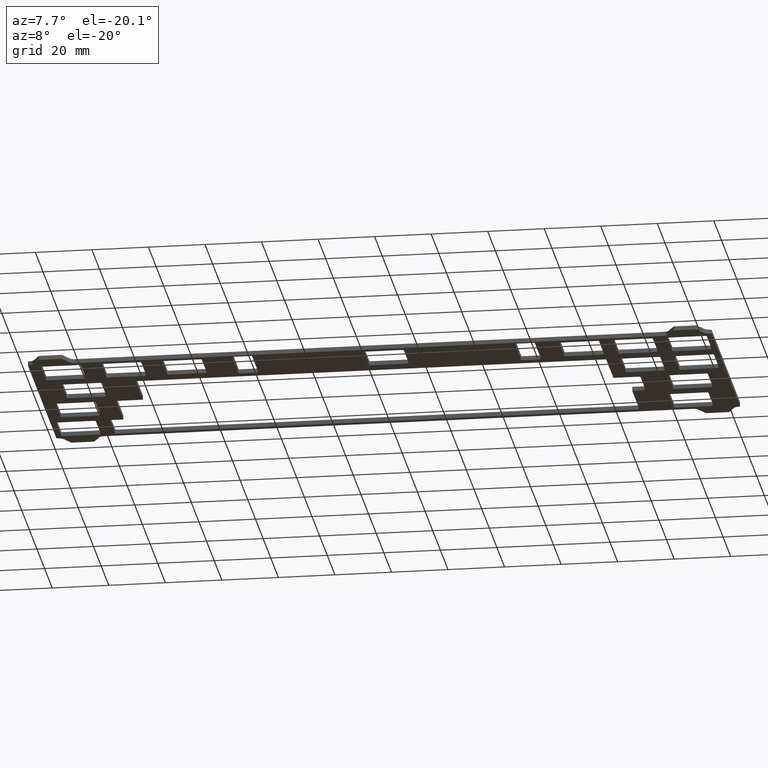
[diagram: clean part render]
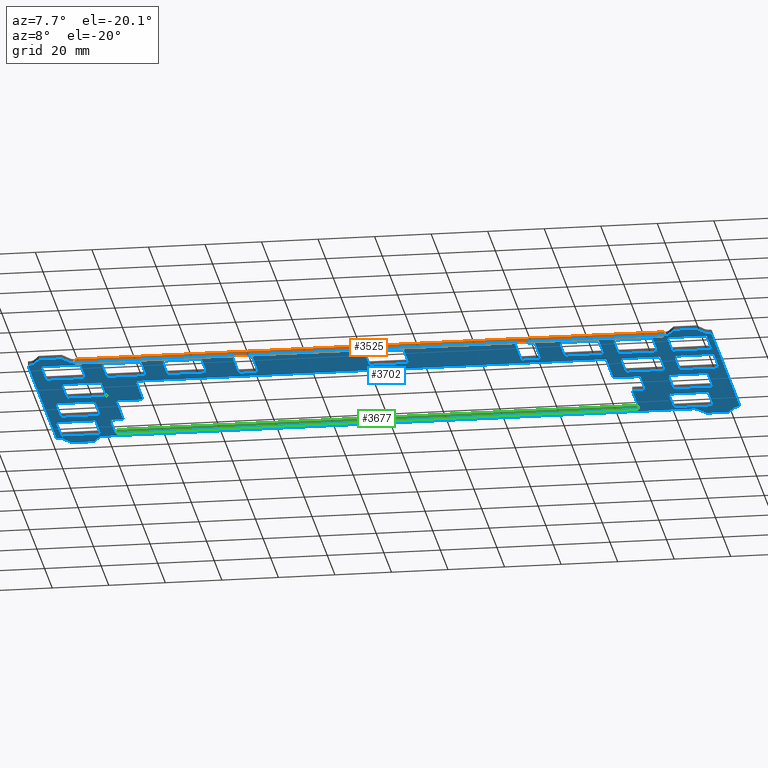
[diagram: same view with three faces highlighted in distinct colors, each labeled with its STEP entity id]
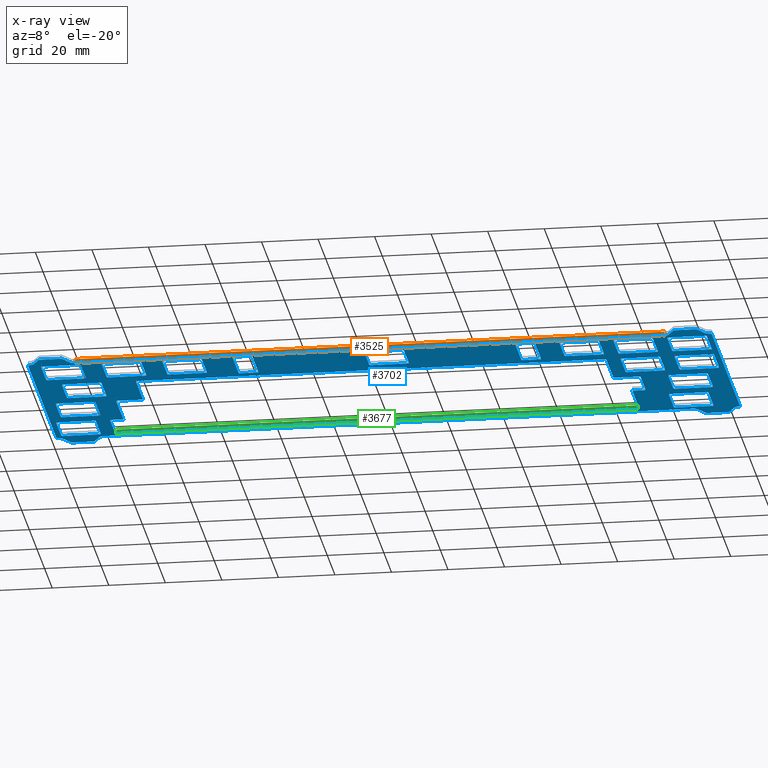
[diagram: x-ray of the same camera — body ghosted, the three highlighted faces saturated]
A machine part, auxiliary view with three faces highlighted in distinct colors.
The next image is the same camera in x-ray (body ghosted, the three faces saturated) — at least one of them is partly hidden behind the body in this view.
Their STEP definitions:

[orange] entity #3525 — the highlighted planar face has unit normal (0, 1, 0).
#305=FACE_OUTER_BOUND('',#487,.T.);
#487=EDGE_LOOP('',(#2359,#2360,#2361,#2362));
#709=LINE('',#5168,#1081);
#710=LINE('',#5171,#1082);
#711=LINE('',#5173,#1083);
#712=LINE('',#5174,#1084);
#1081=VECTOR('',#4091,10.);
#1082=VECTOR('',#4094,10.);
#1083=VECTOR('',#4095,10.);
#1084=VECTOR('',#4096,10.);
#1451=VERTEX_POINT('',#5164);
#1452=VERTEX_POINT('',#5166);
#1453=VERTEX_POINT('',#5170);
#1454=VERTEX_POINT('',#5172);
#1815=EDGE_CURVE('',#1452,#1451,#709,.T.);
#1816=EDGE_CURVE('',#1451,#1453,#710,.T.);
#1817=EDGE_CURVE('',#1454,#1452,#711,.T.);
#1818=EDGE_CURVE('',#1454,#1453,#712,.T.);
#2359=ORIENTED_EDGE('',*,*,#1816,.F.);
#2360=ORIENTED_EDGE('',*,*,#1815,.F.);
#2361=ORIENTED_EDGE('',*,*,#1817,.F.);
#2362=ORIENTED_EDGE('',*,*,#1818,.T.);
#3426=PLANE('',#3723);
#3525=ADVANCED_FACE('',(#305),#3426,.F.);
#3723=AXIS2_PLACEMENT_3D('',#5169,#4092,#4093);
#4091=DIRECTION('',(0.,0.,-1.));
#4092=DIRECTION('center_axis',(1.27859968961994E-16,1.,0.));
#4093=DIRECTION('ref_axis',(1.,-1.27859968961994E-16,0.));
#4094=DIRECTION('',(-1.,1.27859968961994E-16,0.));
#4095=DIRECTION('',(1.,-1.27859968961994E-16,0.));
#4096=DIRECTION('',(0.,0.,-1.));
#5164=CARTESIAN_POINT('',(225.64114973081,-75.675,0.));
#5166=CARTESIAN_POINT('',(225.64114973081,-75.675,1.5));
#5168=CARTESIAN_POINT('',(225.64114973081,-75.675,1.5));
#5169=CARTESIAN_POINT('Origin',(17.2463502691896,-75.675,1.5));
#5170=CARTESIAN_POINT('',(17.2463502691896,-75.675,0.));
#5171=CARTESIAN_POINT('',(69.3450501345948,-75.675,0.));
#5172=CARTESIAN_POINT('',(17.2463502691896,-75.675,1.5));
#5173=CARTESIAN_POINT('',(69.3450501345948,-75.675,1.5));
#5174=CARTESIAN_POINT('',(17.2463502691896,-75.675,1.5));

[blue] entity #3702 — the highlighted planar face has unit normal (0, 0, 1).
#32=FACE_BOUND('',#682,.T.);
#33=FACE_BOUND('',#683,.T.);
#34=FACE_BOUND('',#684,.T.);
#35=FACE_BOUND('',#685,.T.);
#36=FACE_BOUND('',#686,.T.);
#37=FACE_BOUND('',#687,.T.);
#38=FACE_BOUND('',#688,.T.);
#39=FACE_BOUND('',#689,.T.);
#40=FACE_BOUND('',#690,.T.);
#41=FACE_BOUND('',#691,.T.);
#42=FACE_BOUND('',#692,.T.);
#43=FACE_BOUND('',#693,.T.);
#44=FACE_BOUND('',#694,.T.);
#45=FACE_BOUND('',#695,.T.);
#46=FACE_BOUND('',#696,.T.);
#47=FACE_BOUND('',#697,.T.);
#48=FACE_BOUND('',#698,.T.);
#49=CIRCLE('',#3721,1.99999999999995);
#51=CIRCLE('',#3725,1.99999999999997);
#53=CIRCLE('',#3731,2.);
#55=CIRCLE('',#3735,0.500000000000011);
#57=CIRCLE('',#3739,0.500000000000002);
#59=CIRCLE('',#3743,2.);
#61=CIRCLE('',#3749,1.99999999999996);
#63=CIRCLE('',#3753,1.99999999999996);
#65=CIRCLE('',#3759,1.99999999999999);
#67=CIRCLE('',#3763,0.499999999999972);
#69=CIRCLE('',#3767,0.500000000000016);
#71=CIRCLE('',#3771,2.);
#145=CIRCLE('',#3848,0.499999999999998);
#146=CIRCLE('',#3851,0.500000000000007);
#147=CIRCLE('',#3853,0.499999999999998);
#148=CIRCLE('',#3856,0.499999999999998);
#149=CIRCLE('',#3862,0.499999999999972);
#150=CIRCLE('',#3865,0.499999999999972);
#151=CIRCLE('',#3867,0.499999999999998);
#152=CIRCLE('',#3870,0.499999999999998);
#153=CIRCLE('',#3872,0.499999999999998);
#154=CIRCLE('',#3875,0.500000000000007);
#155=CIRCLE('',#3878,0.499999999999998);
#156=CIRCLE('',#3881,0.500000000000007);
#157=CIRCLE('',#3884,0.499999999999998);
#158=CIRCLE('',#3887,0.500000000000007);
#159=CIRCLE('',#3890,0.499999999999998);
#160=CIRCLE('',#3893,0.500000000000007);
#161=CIRCLE('',#3896,0.499999999999998);
#162=CIRCLE('',#3899,0.500000000000007);
#163=CIRCLE('',#3902,0.499999999999998);
#164=CIRCLE('',#3905,0.500000000000007);
#165=CIRCLE('',#3908,0.499999999999998);
#166=CIRCLE('',#3911,0.500000000000007);
#167=CIRCLE('',#3914,0.499999999999998);
#168=CIRCLE('',#3917,0.500000000000007);
#169=CIRCLE('',#3920,0.499999999999998);
#170=CIRCLE('',#3923,0.5);
#171=CIRCLE('',#3926,0.499999999999998);
#172=CIRCLE('',#3929,0.5);
#173=CIRCLE('',#3932,0.499999999999998);
#174=CIRCLE('',#3935,0.499999999999998);
#175=CIRCLE('',#3938,0.499999999999998);
#176=CIRCLE('',#3941,0.500000000000003);
#177=CIRCLE('',#3945,0.499999999999998);
#178=CIRCLE('',#3948,0.499999999999998);
#179=CIRCLE('',#3951,0.500000000000007);
#180=CIRCLE('',#3954,0.499999999999998);
#181=CIRCLE('',#3957,0.500000000000007);
#182=CIRCLE('',#3961,0.499999999999998);
#183=CIRCLE('',#3964,0.499999999999998);
#184=CIRCLE('',#3967,0.499999999999998);
#185=CIRCLE('',#3970,0.499999999999998);
#186=CIRCLE('',#3972,0.500000000000007);
#187=CIRCLE('',#3975,0.499999999999998);
#188=CIRCLE('',#3978,0.500000000000007);
#189=CIRCLE('',#3981,0.499999999999998);
#190=CIRCLE('',#3984,0.499999999999998);
#191=CIRCLE('',#3987,0.5);
#192=CIRCLE('',#3990,0.499999999999998);
#193=CIRCLE('',#3993,0.499999999999998);
#194=CIRCLE('',#3996,0.499999999999998);
#195=CIRCLE('',#3999,0.500000000000007);
#196=CIRCLE('',#4002,0.499999999999998);
#197=CIRCLE('',#4005,0.500000000000007);
#198=CIRCLE('',#4009,0.499999999999998);
#199=CIRCLE('',#4012,0.499999999999998);
#200=CIRCLE('',#4015,0.500000000000007);
#201=CIRCLE('',#4018,0.5);
#202=CIRCLE('',#4021,0.499999999999998);
#203=CIRCLE('',#4024,0.5);
#204=CIRCLE('',#4027,0.499999999999998);
#205=CIRCLE('',#4029,0.500000000000007);
#206=CIRCLE('',#4034,0.499999999999998);
#207=CIRCLE('',#4037,0.5);
#208=CIRCLE('',#4040,0.500000000000007);
#209=CIRCLE('',#4043,0.5);
#210=CIRCLE('',#4046,0.500000000000007);
#211=CIRCLE('',#4049,0.5);
#212=CIRCLE('',#4052,0.499999999999998);
#213=CIRCLE('',#4055,0.5);
#214=CIRCLE('',#4058,0.5);
#215=CIRCLE('',#4061,0.5);
#216=CIRCLE('',#4064,0.5);
#482=FACE_OUTER_BOUND('',#681,.T.);
#681=EDGE_LOOP('',(#3243,#3244,#3245,#3246,#3247,#3248,#3249,#3250,#3251,
#3252,#3253,#3254,#3255,#3256,#3257,#3258,#3259,#3260,#3261,#3262,#3263,
#3264,#3265,#3266,#3267,#3268,#3269,#3270,#3271,#3272,#3273,#3274));
#682=EDGE_LOOP('',(#3275,#3276,#3277,#3278,#3279,#3280,#3281,#3282,#3283,
#3284,#3285,#3286,#3287,#3288,#3289,#3290,#3291,#3292,#3293,#3294));
#683=EDGE_LOOP('',(#3295,#3296,#3297,#3298,#3299,#3300,#3301,#3302));
#684=EDGE_LOOP('',(#3303,#3304,#3305,#3306,#3307,#3308,#3309,#3310));
#685=EDGE_LOOP('',(#3311,#3312,#3313,#3314,#3315,#3316,#3317,#3318));
#686=EDGE_LOOP('',(#3319,#3320,#3321,#3322,#3323,#3324,#3325,#3326));
#687=EDGE_LOOP('',(#3327,#3328,#3329,#3330,#3331,#3332,#3333,#3334));
#688=EDGE_LOOP('',(#3335,#3336,#3337,#3338,#3339,#3340,#3341,#3342));
#689=EDGE_LOOP('',(#3343,#3344,#3345,#3346,#3347,#3348,#3349,#3350));
#690=EDGE_LOOP('',(#3351,#3352,#3353,#3354,#3355,#3356,#3357,#3358));
#691=EDGE_LOOP('',(#3359,#3360,#3361,#3362,#3363,#3364,#3365,#3366));
#692=EDGE_LOOP('',(#3367,#3368,#3369,#3370,#3371,#3372,#3373,#3374));
#693=EDGE_LOOP('',(#3375,#3376,#3377,#3378,#3379,#3380,#3381,#3382));
#694=EDGE_LOOP('',(#3383,#3384,#3385,#3386,#3387,#3388,#3389,#3390));
#695=EDGE_LOOP('',(#3391,#3392,#3393,#3394,#3395,#3396,#3397,#3398));
#696=EDGE_LOOP('',(#3399,#3400,#3401,#3402,#3403,#3404,#3405,#3406));
#697=EDGE_LOOP('',(#3407,#3408,#3409,#3410,#3411,#3412,#3413,#3414));
#698=EDGE_LOOP('',(#3415,#3416,#3417,#3418,#3419,#3420,#3421,#3422));
#699=LINE('',#5145,#1071);
#703=LINE('',#5153,#1075);
#706=LINE('',#5159,#1078);
#710=LINE('',#5171,#1082);
#714=LINE('',#5183,#1086);
#717=LINE('',#5189,#1089);
#720=LINE('',#5195,#1092);
#724=LINE('',#5207,#1096);
#728=LINE('',#5219,#1100);
#732=LINE('',#5231,#1104);
#736=LINE('',#5243,#1108);
#739=LINE('',#5249,#1111);
#742=LINE('',#5255,#1114);
#746=LINE('',#5267,#1118);
#750=LINE('',#5279,#1122);
#753=LINE('',#5285,#1125);
#756=LINE('',#5291,#1128);
#760=LINE('',#5303,#1132);
#764=LINE('',#5315,#1136);
#768=LINE('',#5327,#1140);
#772=LINE('',#5339,#1144);
#852=LINE('',#5645,#1224);
#857=LINE('',#5659,#1229);
#860=LINE('',#5667,#1232);
#863=LINE('',#5672,#1235);
#865=LINE('',#5676,#1237);
#866=LINE('',#5679,#1238);
#869=LINE('',#5687,#1241);
#872=LINE('',#5697,#1244);
#876=LINE('',#5709,#1248);
#879=LINE('',#5717,#1251);
#882=LINE('',#5725,#1254);
#885=LINE('',#5732,#1257);
#888=LINE('',#5741,#1260);
#891=LINE('',#5749,#1263);
#894=LINE('',#5757,#1266);
#897=LINE('',#5764,#1269);
#900=LINE('',#5773,#1272);
#903=LINE('',#5781,#1275);
#906=LINE('',#5789,#1278);
#909=LINE('',#5796,#1281);
#912=LINE('',#5805,#1284);
#915=LINE('',#5813,#1287);
#918=LINE('',#5821,#1290);
#921=LINE('',#5828,#1293);
#924=LINE('',#5837,#1296);
#927=LINE('',#5845,#1299);
#930=LINE('',#5853,#1302);
#933=LINE('',#5860,#1305);
#936=LINE('',#5869,#1308);
#939=LINE('',#5877,#1311);
#942=LINE('',#5885,#1314);
#945=LINE('',#5892,#1317);
#946=LINE('',#5896,#1318);
#950=LINE('',#5905,#1322);
#954=LINE('',#5915,#1326);
#957=LINE('',#5923,#1329);
#960=LINE('',#5931,#1332);
#963=LINE('',#5938,#1335);
#964=LINE('',#5942,#1336);
#968=LINE('',#5951,#1340);
#971=LINE('',#5959,#1343);
#974=LINE('',#5967,#1346);
#978=LINE('',#5979,#1350);
#981=LINE('',#5987,#1353);
#984=LINE('',#5995,#1356);
#987=LINE('',#6002,#1359);
#990=LINE('',#6011,#1362);
#993=LINE('',#6019,#1365);
#996=LINE('',#6027,#1368);
#999=LINE('',#6034,#1371);
#1002=LINE('',#6043,#1374);
#1005=LINE('',#6051,#1377);
#1008=LINE('',#6059,#1380);
#1011=LINE('',#6066,#1383);
#1012=LINE('',#6070,#1384);
#1016=LINE('',#6078,#1388);
#1018=LINE('',#6085,#1390);
#1020=LINE('',#6092,#1392);
#1024=LINE('',#6101,#1396);
#1027=LINE('',#6109,#1399);
#1030=LINE('',#6117,#1402);
#1034=LINE('',#6129,#1406);
#1036=LINE('',#6132,#1408);
#1037=LINE('',#6136,#1409);
#1041=LINE('',#6144,#1413);
#1044=LINE('',#6153,#1416);
#1047=LINE('',#6161,#1419);
#1050=LINE('',#6169,#1422);
#1053=LINE('',#6176,#1425);
#1055=LINE('',#6183,#1427);
#1058=LINE('',#6190,#1430);
#1061=LINE('',#6199,#1433);
#1064=LINE('',#6207,#1436);
#1067=LINE('',#6215,#1439);
#1070=LINE('',#6222,#1442);
#1071=VECTOR('',#4071,10.);
#1075=VECTOR('',#4077,10.);
#1078=VECTOR('',#4082,10.);
#1082=VECTOR('',#4094,10.);
#1086=VECTOR('',#4106,10.);
#1089=VECTOR('',#4111,10.);
#1092=VECTOR('',#4116,10.);
#1096=VECTOR('',#4128,10.);
#1100=VECTOR('',#4140,10.);
#1104=VECTOR('',#4152,10.);
#1108=VECTOR('',#4164,10.);
#1111=VECTOR('',#4169,10.);
#1114=VECTOR('',#4174,10.);
#1118=VECTOR('',#4186,10.);
#1122=VECTOR('',#4198,10.);
#1125=VECTOR('',#4203,10.);
#1128=VECTOR('',#4208,10.);
#1132=VECTOR('',#4220,10.);
#1136=VECTOR('',#4232,10.);
#1140=VECTOR('',#4244,10.);
#1144=VECTOR('',#4256,10.);
#1224=VECTOR('',#4488,10.);
#1229=VECTOR('',#4503,10.);
#1232=VECTOR('',#4512,10.);
#1235=VECTOR('',#4517,10.);
#1237=VECTOR('',#4521,10.);
#1238=VECTOR('',#4524,10.);
#1241=VECTOR('',#4533,10.);
#1244=VECTOR('',#4546,10.);
#1248=VECTOR('',#4560,10.);
#1251=VECTOR('',#4569,10.);
#1254=VECTOR('',#4578,10.);
#1257=VECTOR('',#4587,10.);
#1260=VECTOR('',#4596,10.);
#1263=VECTOR('',#4605,10.);
#1266=VECTOR('',#4614,10.);
#1269=VECTOR('',#4623,10.);
#1272=VECTOR('',#4632,10.);
#1275=VECTOR('',#4641,10.);
#1278=VECTOR('',#4650,10.);
#1281=VECTOR('',#4659,10.);
#1284=VECTOR('',#4668,10.);
#1287=VECTOR('',#4677,10.);
#1290=VECTOR('',#4686,10.);
#1293=VECTOR('',#4695,10.);
#1296=VECTOR('',#4704,10.);
#1299=VECTOR('',#4713,10.);
#1302=VECTOR('',#4722,10.);
#1305=VECTOR('',#4731,10.);
#1308=VECTOR('',#4740,10.);
#1311=VECTOR('',#4749,10.);
#1314=VECTOR('',#4758,10.);
#1317=VECTOR('',#4767,10.);
#1318=VECTOR('',#4770,10.);
#1322=VECTOR('',#4780,10.);
#1326=VECTOR('',#4790,10.);
#1329=VECTOR('',#4799,10.);
#1332=VECTOR('',#4808,10.);
#1335=VECTOR('',#4817,10.);
#1336=VECTOR('',#4820,10.);
#1340=VECTOR('',#4830,10.);
#1343=VECTOR('',#4839,10.);
#1346=VECTOR('',#4848,10.);
#1350=VECTOR('',#4862,10.);
#1353=VECTOR('',#4871,10.);
#1356=VECTOR('',#4880,10.);
#1359=VECTOR('',#4889,10.);
#1362=VECTOR('',#4898,10.);
#1365=VECTOR('',#4907,10.);
#1368=VECTOR('',#4916,10.);
#1371=VECTOR('',#4925,10.);
#1374=VECTOR('',#4934,10.);
#1377=VECTOR('',#4943,10.);
#1380=VECTOR('',#4952,10.);
#1383=VECTOR('',#4961,10.);
#1384=VECTOR('',#4964,10.);
#1388=VECTOR('',#4974,10.);
#1390=VECTOR('',#4982,10.);
#1392=VECTOR('',#4990,10.);
#1396=VECTOR('',#5000,10.);
#1399=VECTOR('',#5009,10.);
#1402=VECTOR('',#5018,10.);
#1406=VECTOR('',#5032,10.);
#1408=VECTOR('',#5036,10.);
#1409=VECTOR('',#5039,10.);
#1413=VECTOR('',#5049,10.);
#1416=VECTOR('',#5058,10.);
#1419=VECTOR('',#5067,10.);
#1422=VECTOR('',#5076,10.);
#1425=VECTOR('',#5085,10.);
#1427=VECTOR('',#5093,10.);
#1430=VECTOR('',#5102,10.);
#1433=VECTOR('',#5111,10.);
#1436=VECTOR('',#5120,10.);
#1439=VECTOR('',#5129,10.);
#1442=VECTOR('',#5138,10.);
#1443=VERTEX_POINT('',#5143);
#1444=VERTEX_POINT('',#5144);
#1447=VERTEX_POINT('',#5152);
#1449=VERTEX_POINT('',#5158);
#1451=VERTEX_POINT('',#5164);
#1453=VERTEX_POINT('',#5170);
#1455=VERTEX_POINT('',#5176);
#1457=VERTEX_POINT('',#5182);
#1459=VERTEX_POINT('',#5188);
#1461=VERTEX_POINT('',#5194);
#1463=VERTEX_POINT('',#5200);
#1465=VERTEX_POINT('',#5206);
#1467=VERTEX_POINT('',#5212);
#1469=VERTEX_POINT('',#5218);
#1471=VERTEX_POINT('',#5224);
#1473=VERTEX_POINT('',#5230);
#1475=VERTEX_POINT('',#5236);
#1477=VERTEX_POINT('',#5242);
#1479=VERTEX_POINT('',#5248);
#1481=VERTEX_POINT('',#5254);
#1483=VERTEX_POINT('',#5260);
#1485=VERTEX_POINT('',#5266);
#1487=VERTEX_POINT('',#5272);
#1489=VERTEX_POINT('',#5278);
#1491=VERTEX_POINT('',#5284);
#1493=VERTEX_POINT('',#5290);
#1495=VERTEX_POINT('',#5296);
#1497=VERTEX_POINT('',#5302);
#1499=VERTEX_POINT('',#5308);
#1501=VERTEX_POINT('',#5314);
#1503=VERTEX_POINT('',#5320);
#1505=VERTEX_POINT('',#5326);
#1508=VERTEX_POINT('',#5336);
#1509=VERTEX_POINT('',#5338);
#1657=VERTEX_POINT('',#5638);
#1658=VERTEX_POINT('',#5639);
#1659=VERTEX_POINT('',#5644);
#1660=VERTEX_POINT('',#5648);
#1661=VERTEX_POINT('',#5652);
#1662=VERTEX_POINT('',#5653);
#1663=VERTEX_POINT('',#5658);
#1664=VERTEX_POINT('',#5662);
#1665=VERTEX_POINT('',#5666);
#1666=VERTEX_POINT('',#5670);
#1667=VERTEX_POINT('',#5674);
#1668=VERTEX_POINT('',#5678);
#1669=VERTEX_POINT('',#5682);
#1670=VERTEX_POINT('',#5686);
#1671=VERTEX_POINT('',#5692);
#1672=VERTEX_POINT('',#5696);
#1673=VERTEX_POINT('',#5702);
#1674=VERTEX_POINT('',#5703);
#1675=VERTEX_POINT('',#5708);
#1676=VERTEX_POINT('',#5712);
#1677=VERTEX_POINT('',#5716);
#1678=VERTEX_POINT('',#5720);
#1679=VERTEX_POINT('',#5724);
#1680=VERTEX_POINT('',#5728);
#1681=VERTEX_POINT('',#5734);
#1682=VERTEX_POINT('',#5735);
#1683=VERTEX_POINT('',#5740);
#1684=VERTEX_POINT('',#5744);
#1685=VERTEX_POINT('',#5748);
#1686=VERTEX_POINT('',#5752);
#1687=VERTEX_POINT('',#5756);
#1688=VERTEX_POINT('',#5760);
#1689=VERTEX_POINT('',#5766);
#1690=VERTEX_POINT('',#5767);
#1691=VERTEX_POINT('',#5772);
#1692=VERTEX_POINT('',#5776);
#1693=VERTEX_POINT('',#5780);
#1694=VERTEX_POINT('',#5784);
#1695=VERTEX_POINT('',#5788);
#1696=VERTEX_POINT('',#5792);
#1697=VERTEX_POINT('',#5798);
#1698=VERTEX_POINT('',#5799);
#1699=VERTEX_POINT('',#5804);
#1700=VERTEX_POINT('',#5808);
#1701=VERTEX_POINT('',#5812);
#1702=VERTEX_POINT('',#5816);
#1703=VERTEX_POINT('',#5820);
#1704=VERTEX_POINT('',#5824);
#1705=VERTEX_POINT('',#5830);
#1706=VERTEX_POINT('',#5831);
#1707=VERTEX_POINT('',#5836);
#1708=VERTEX_POINT('',#5840);
#1709=VERTEX_POINT('',#5844);
#1710=VERTEX_POINT('',#5848);
#1711=VERTEX_POINT('',#5852);
#1712=VERTEX_POINT('',#5856);
#1713=VERTEX_POINT('',#5862);
#1714=VERTEX_POINT('',#5863);
#1715=VERTEX_POINT('',#5868);
#1716=VERTEX_POINT('',#5872);
#1717=VERTEX_POINT('',#5876);
#1718=VERTEX_POINT('',#5880);
#1719=VERTEX_POINT('',#5884);
#1720=VERTEX_POINT('',#5888);
#1721=VERTEX_POINT('',#5894);
#1722=VERTEX_POINT('',#5895);
#1723=VERTEX_POINT('',#5900);
#1724=VERTEX_POINT('',#5904);
#1725=VERTEX_POINT('',#5908);
#1726=VERTEX_POINT('',#5909);
#1727=VERTEX_POINT('',#5914);
#1728=VERTEX_POINT('',#5918);
#1729=VERTEX_POINT('',#5922);
#1730=VERTEX_POINT('',#5926);
#1731=VERTEX_POINT('',#5930);
#1732=VERTEX_POINT('',#5934);
#1733=VERTEX_POINT('',#5940);
#1734=VERTEX_POINT('',#5941);
#1735=VERTEX_POINT('',#5946);
#1736=VERTEX_POINT('',#5950);
#1737=VERTEX_POINT('',#5954);
#1738=VERTEX_POINT('',#5958);
#1739=VERTEX_POINT('',#5962);
#1740=VERTEX_POINT('',#5966);
#1741=VERTEX_POINT('',#5972);
#1742=VERTEX_POINT('',#5973);
#1743=VERTEX_POINT('',#5978);
#1744=VERTEX_POINT('',#5982);
#1745=VERTEX_POINT('',#5986);
#1746=VERTEX_POINT('',#5990);
#1747=VERTEX_POINT('',#5994);
#1748=VERTEX_POINT('',#5998);
#1749=VERTEX_POINT('',#6004);
#1750=VERTEX_POINT('',#6005);
#1751=VERTEX_POINT('',#6010);
#1752=VERTEX_POINT('',#6014);
#1753=VERTEX_POINT('',#6018);
#1754=VERTEX_POINT('',#6022);
#1755=VERTEX_POINT('',#6026);
#1756=VERTEX_POINT('',#6030);
#1757=VERTEX_POINT('',#6036);
#1758=VERTEX_POINT('',#6037);
#1759=VERTEX_POINT('',#6042);
#1760=VERTEX_POINT('',#6046);
#1761=VERTEX_POINT('',#6050);
#1762=VERTEX_POINT('',#6054);
#1763=VERTEX_POINT('',#6058);
#1764=VERTEX_POINT('',#6062);
#1765=VERTEX_POINT('',#6068);
#1766=VERTEX_POINT('',#6069);
#1767=VERTEX_POINT('',#6076);
#1768=VERTEX_POINT('',#6080);
#1769=VERTEX_POINT('',#6084);
#1770=VERTEX_POINT('',#6090);
#1771=VERTEX_POINT('',#6091);
#1772=VERTEX_POINT('',#6096);
#1773=VERTEX_POINT('',#6100);
#1774=VERTEX_POINT('',#6104);
#1775=VERTEX_POINT('',#6108);
#1776=VERTEX_POINT('',#6112);
#1777=VERTEX_POINT('',#6116);
#1778=VERTEX_POINT('',#6122);
#1779=VERTEX_POINT('',#6123);
#1780=VERTEX_POINT('',#6128);
#1781=VERTEX_POINT('',#6134);
#1782=VERTEX_POINT('',#6135);
#1783=VERTEX_POINT('',#6140);
#1784=VERTEX_POINT('',#6146);
#1785=VERTEX_POINT('',#6147);
#1786=VERTEX_POINT('',#6152);
#1787=VERTEX_POINT('',#6156);
#1788=VERTEX_POINT('',#6160);
#1789=VERTEX_POINT('',#6164);
#1790=VERTEX_POINT('',#6168);
#1791=VERTEX_POINT('',#6172);
#1792=VERTEX_POINT('',#6178);
#1793=VERTEX_POINT('',#6182);
#1794=VERTEX_POINT('',#6186);
#1795=VERTEX_POINT('',#6192);
#1796=VERTEX_POINT('',#6193);
#1797=VERTEX_POINT('',#6198);
#1798=VERTEX_POINT('',#6202);
#1799=VERTEX_POINT('',#6206);
#1800=VERTEX_POINT('',#6210);
#1801=VERTEX_POINT('',#6214);
#1802=VERTEX_POINT('',#6218);
#1803=EDGE_CURVE('',#1443,#1444,#699,.T.);
#1807=EDGE_CURVE('',#1444,#1447,#703,.T.);
#1810=EDGE_CURVE('',#1447,#1449,#706,.T.);
#1813=EDGE_CURVE('',#1449,#1451,#49,.T.);
#1816=EDGE_CURVE('',#1451,#1453,#710,.T.);
#1819=EDGE_CURVE('',#1453,#1455,#51,.T.);
#1822=EDGE_CURVE('',#1455,#1457,#714,.T.);
#1825=EDGE_CURVE('',#1457,#1459,#717,.T.);
#1828=EDGE_CURVE('',#1459,#1461,#720,.T.);
#1831=EDGE_CURVE('',#1461,#1463,#53,.T.);
#1834=EDGE_CURVE('',#1463,#1465,#724,.T.);
#1837=EDGE_CURVE('',#1465,#1467,#55,.T.);
#1840=EDGE_CURVE('',#1467,#1469,#728,.T.);
#1843=EDGE_CURVE('',#1469,#1471,#57,.T.);
#1846=EDGE_CURVE('',#1471,#1473,#732,.T.);
#1849=EDGE_CURVE('',#1473,#1475,#59,.T.);
#1852=EDGE_CURVE('',#1475,#1477,#736,.T.);
#1855=EDGE_CURVE('',#1477,#1479,#739,.T.);
#1858=EDGE_CURVE('',#1479,#1481,#742,.T.);
#1861=EDGE_CURVE('',#1481,#1483,#61,.T.);
#1864=EDGE_CURVE('',#1483,#1485,#746,.T.);
#1867=EDGE_CURVE('',#1485,#1487,#63,.T.);
#1870=EDGE_CURVE('',#1487,#1489,#750,.T.);
#1873=EDGE_CURVE('',#1489,#1491,#753,.T.);
#1876=EDGE_CURVE('',#1491,#1493,#756,.T.);
#1879=EDGE_CURVE('',#1493,#1495,#65,.T.);
#1882=EDGE_CURVE('',#1495,#1497,#760,.T.);
#1885=EDGE_CURVE('',#1497,#1499,#67,.T.);
#1888=EDGE_CURVE('',#1499,#1501,#764,.T.);
#1891=EDGE_CURVE('',#1501,#1503,#69,.T.);
#1894=EDGE_CURVE('',#1503,#1505,#768,.T.);
#1897=EDGE_CURVE('',#1505,#1443,#71,.T.);
#1900=EDGE_CURVE('',#1508,#1509,#772,.T.);
#2050=EDGE_CURVE('',#1657,#1658,#145,.T.);
#2053=EDGE_CURVE('',#1659,#1658,#852,.T.);
#2055=EDGE_CURVE('',#1659,#1660,#146,.T.);
#2057=EDGE_CURVE('',#1661,#1662,#147,.T.);
#2060=EDGE_CURVE('',#1663,#1662,#857,.T.);
#2062=EDGE_CURVE('',#1663,#1664,#148,.T.);
#2064=EDGE_CURVE('',#1665,#1664,#860,.T.);
#2067=EDGE_CURVE('',#1666,#1657,#863,.T.);
#2069=EDGE_CURVE('',#1667,#1661,#865,.T.);
#2070=EDGE_CURVE('',#1668,#1660,#866,.T.);
#2072=EDGE_CURVE('',#1666,#1669,#149,.T.);
#2074=EDGE_CURVE('',#1670,#1669,#869,.T.);
#2076=EDGE_CURVE('',#1670,#1668,#150,.T.);
#2077=EDGE_CURVE('',#1667,#1671,#151,.T.);
#2079=EDGE_CURVE('',#1671,#1672,#872,.T.);
#2081=EDGE_CURVE('',#1672,#1665,#152,.T.);
#2082=EDGE_CURVE('',#1673,#1674,#153,.T.);
#2085=EDGE_CURVE('',#1674,#1675,#876,.T.);
#2087=EDGE_CURVE('',#1675,#1676,#154,.T.);
#2089=EDGE_CURVE('',#1676,#1677,#879,.T.);
#2091=EDGE_CURVE('',#1677,#1678,#155,.T.);
#2093=EDGE_CURVE('',#1679,#1678,#882,.T.);
#2095=EDGE_CURVE('',#1679,#1680,#156,.T.);
#2097=EDGE_CURVE('',#1673,#1680,#885,.T.);
#2098=EDGE_CURVE('',#1681,#1682,#157,.T.);
#2101=EDGE_CURVE('',#1682,#1683,#888,.T.);
#2103=EDGE_CURVE('',#1683,#1684,#158,.T.);
#2105=EDGE_CURVE('',#1684,#1685,#891,.T.);
#2107=EDGE_CURVE('',#1685,#1686,#159,.T.);
#2109=EDGE_CURVE('',#1687,#1686,#894,.T.);
#2111=EDGE_CURVE('',#1687,#1688,#160,.T.);
#2113=EDGE_CURVE('',#1681,#1688,#897,.T.);
#2114=EDGE_CURVE('',#1689,#1690,#161,.T.);
#2117=EDGE_CURVE('',#1690,#1691,#900,.T.);
#2119=EDGE_CURVE('',#1691,#1692,#162,.T.);
#2121=EDGE_CURVE('',#1692,#1693,#903,.T.);
#2123=EDGE_CURVE('',#1693,#1694,#163,.T.);
#2125=EDGE_CURVE('',#1695,#1694,#906,.T.);
#2127=EDGE_CURVE('',#1695,#1696,#164,.T.);
#2129=EDGE_CURVE('',#1689,#1696,#909,.T.);
#2130=EDGE_CURVE('',#1697,#1698,#165,.T.);
#2133=EDGE_CURVE('',#1698,#1699,#912,.T.);
#2135=EDGE_CURVE('',#1699,#1700,#166,.T.);
#2137=EDGE_CURVE('',#1700,#1701,#915,.T.);
#2139=EDGE_CURVE('',#1701,#1702,#167,.T.);
#2141=EDGE_CURVE('',#1703,#1702,#918,.T.);
#2143=EDGE_CURVE('',#1703,#1704,#168,.T.);
#2145=EDGE_CURVE('',#1697,#1704,#921,.T.);
#2146=EDGE_CURVE('',#1705,#1706,#169,.T.);
#2149=EDGE_CURVE('',#1706,#1707,#924,.T.);
#2151=EDGE_CURVE('',#1707,#1708,#170,.T.);
#2153=EDGE_CURVE('',#1708,#1709,#927,.T.);
#2155=EDGE_CURVE('',#1709,#1710,#171,.T.);
#2157=EDGE_CURVE('',#1711,#1710,#930,.T.);
#2159=EDGE_CURVE('',#1711,#1712,#172,.T.);
#2161=EDGE_CURVE('',#1705,#1712,#933,.T.);
#2162=EDGE_CURVE('',#1713,#1714,#173,.T.);
#2165=EDGE_CURVE('',#1714,#1715,#936,.T.);
#2167=EDGE_CURVE('',#1715,#1716,#174,.T.);
#2169=EDGE_CURVE('',#1716,#1717,#939,.T.);
#2171=EDGE_CURVE('',#1717,#1718,#175,.T.);
#2173=EDGE_CURVE('',#1719,#1718,#942,.T.);
#2175=EDGE_CURVE('',#1719,#1720,#176,.T.);
#2177=EDGE_CURVE('',#1713,#1720,#945,.T.);
#2178=EDGE_CURVE('',#1721,#1722,#946,.T.);
#2181=EDGE_CURVE('',#1722,#1723,#177,.T.);
#2183=EDGE_CURVE('',#1723,#1724,#950,.T.);
#2185=EDGE_CURVE('',#1725,#1726,#178,.T.);
#2188=EDGE_CURVE('',#1726,#1727,#954,.T.);
#2190=EDGE_CURVE('',#1727,#1728,#179,.T.);
#2192=EDGE_CURVE('',#1728,#1729,#957,.T.);
#2194=EDGE_CURVE('',#1729,#1730,#180,.T.);
#2196=EDGE_CURVE('',#1731,#1730,#960,.T.);
#2198=EDGE_CURVE('',#1731,#1732,#181,.T.);
#2200=EDGE_CURVE('',#1725,#1732,#963,.T.);
#2201=EDGE_CURVE('',#1733,#1734,#964,.T.);
#2204=EDGE_CURVE('',#1734,#1735,#182,.T.);
#2206=EDGE_CURVE('',#1735,#1736,#968,.T.);
#2208=EDGE_CURVE('',#1736,#1737,#183,.T.);
#2210=EDGE_CURVE('',#1738,#1737,#971,.T.);
#2212=EDGE_CURVE('',#1738,#1739,#184,.T.);
#2214=EDGE_CURVE('',#1740,#1739,#974,.T.);
#2216=EDGE_CURVE('',#1740,#1733,#185,.T.);
#2217=EDGE_CURVE('',#1741,#1742,#186,.T.);
#2220=EDGE_CURVE('',#1743,#1742,#978,.T.);
#2222=EDGE_CURVE('',#1743,#1744,#187,.T.);
#2224=EDGE_CURVE('',#1744,#1745,#981,.T.);
#2226=EDGE_CURVE('',#1745,#1746,#188,.T.);
#2228=EDGE_CURVE('',#1746,#1747,#984,.T.);
#2230=EDGE_CURVE('',#1747,#1748,#189,.T.);
#2232=EDGE_CURVE('',#1741,#1748,#987,.T.);
#2233=EDGE_CURVE('',#1749,#1750,#190,.T.);
#2236=EDGE_CURVE('',#1750,#1751,#990,.T.);
#2238=EDGE_CURVE('',#1751,#1752,#191,.T.);
#2240=EDGE_CURVE('',#1752,#1753,#993,.T.);
#2242=EDGE_CURVE('',#1753,#1754,#192,.T.);
#2244=EDGE_CURVE('',#1755,#1754,#996,.T.);
#2246=EDGE_CURVE('',#1755,#1756,#193,.T.);
#2248=EDGE_CURVE('',#1749,#1756,#999,.T.);
#2249=EDGE_CURVE('',#1757,#1758,#194,.T.);
#2252=EDGE_CURVE('',#1758,#1759,#1002,.T.);
#2254=EDGE_CURVE('',#1759,#1760,#195,.T.);
#2256=EDGE_CURVE('',#1760,#1761,#1005,.T.);
#2258=EDGE_CURVE('',#1761,#1762,#196,.T.);
#2260=EDGE_CURVE('',#1763,#1762,#1008,.T.);
#2262=EDGE_CURVE('',#1763,#1764,#197,.T.);
#2264=EDGE_CURVE('',#1757,#1764,#1011,.T.);
#2265=EDGE_CURVE('',#1765,#1766,#1012,.T.);
#2268=EDGE_CURVE('',#1766,#1721,#198,.T.);
#2270=EDGE_CURVE('',#1724,#1767,#1016,.T.);
#2271=EDGE_CURVE('',#1767,#1768,#199,.T.);
#2273=EDGE_CURVE('',#1769,#1768,#1018,.T.);
#2275=EDGE_CURVE('',#1769,#1509,#200,.T.);
#2276=EDGE_CURVE('',#1770,#1771,#1020,.T.);
#2279=EDGE_CURVE('',#1771,#1772,#201,.T.);
#2281=EDGE_CURVE('',#1772,#1773,#1024,.T.);
#2283=EDGE_CURVE('',#1773,#1774,#202,.T.);
#2285=EDGE_CURVE('',#1775,#1774,#1027,.T.);
#2287=EDGE_CURVE('',#1775,#1776,#203,.T.);
#2289=EDGE_CURVE('',#1777,#1776,#1030,.T.);
#2291=EDGE_CURVE('',#1777,#1770,#204,.T.);
#2292=EDGE_CURVE('',#1778,#1779,#205,.T.);
#2295=EDGE_CURVE('',#1780,#1779,#1034,.T.);
#2297=EDGE_CURVE('',#1778,#1508,#1036,.T.);
#2298=EDGE_CURVE('',#1781,#1782,#1037,.T.);
#2301=EDGE_CURVE('',#1782,#1783,#206,.T.);
#2303=EDGE_CURVE('',#1783,#1765,#1041,.T.);
#2304=EDGE_CURVE('',#1784,#1785,#207,.T.);
#2307=EDGE_CURVE('',#1785,#1786,#1044,.T.);
#2309=EDGE_CURVE('',#1786,#1787,#208,.T.);
#2311=EDGE_CURVE('',#1787,#1788,#1047,.T.);
#2313=EDGE_CURVE('',#1788,#1789,#209,.T.);
#2315=EDGE_CURVE('',#1790,#1789,#1050,.T.);
#2317=EDGE_CURVE('',#1790,#1791,#210,.T.);
#2319=EDGE_CURVE('',#1784,#1791,#1053,.T.);
#2320=EDGE_CURVE('',#1780,#1792,#211,.T.);
#2322=EDGE_CURVE('',#1792,#1793,#1055,.T.);
#2324=EDGE_CURVE('',#1793,#1794,#212,.T.);
#2326=EDGE_CURVE('',#1794,#1781,#1058,.T.);
#2327=EDGE_CURVE('',#1795,#1796,#213,.T.);
#2330=EDGE_CURVE('',#1796,#1797,#1061,.T.);
#2332=EDGE_CURVE('',#1797,#1798,#214,.T.);
#2334=EDGE_CURVE('',#1798,#1799,#1064,.T.);
#2336=EDGE_CURVE('',#1799,#1800,#215,.T.);
#2338=EDGE_CURVE('',#1801,#1800,#1067,.T.);
#2340=EDGE_CURVE('',#1801,#1802,#216,.T.);
#2342=EDGE_CURVE('',#1795,#1802,#1070,.T.);
#3243=ORIENTED_EDGE('',*,*,#1852,.T.);
#3244=ORIENTED_EDGE('',*,*,#1855,.T.);
#3245=ORIENTED_EDGE('',*,*,#1858,.T.);
#3246=ORIENTED_EDGE('',*,*,#1861,.T.);
#3247=ORIENTED_EDGE('',*,*,#1864,.T.);
#3248=ORIENTED_EDGE('',*,*,#1867,.T.);
#3249=ORIENTED_EDGE('',*,*,#1870,.T.);
#3250=ORIENTED_EDGE('',*,*,#1873,.T.);
#3251=ORIENTED_EDGE('',*,*,#1876,.T.);
#3252=ORIENTED_EDGE('',*,*,#1879,.T.);
#3253=ORIENTED_EDGE('',*,*,#1882,.T.);
#3254=ORIENTED_EDGE('',*,*,#1885,.T.);
#3255=ORIENTED_EDGE('',*,*,#1888,.T.);
#3256=ORIENTED_EDGE('',*,*,#1891,.T.);
#3257=ORIENTED_EDGE('',*,*,#1894,.T.);
#3258=ORIENTED_EDGE('',*,*,#1897,.T.);
#3259=ORIENTED_EDGE('',*,*,#1803,.T.);
#3260=ORIENTED_EDGE('',*,*,#1807,.T.);
#3261=ORIENTED_EDGE('',*,*,#1810,.T.);
#3262=ORIENTED_EDGE('',*,*,#1813,.T.);
#3263=ORIENTED_EDGE('',*,*,#1816,.T.);
#3264=ORIENTED_EDGE('',*,*,#1819,.T.);
#3265=ORIENTED_EDGE('',*,*,#1822,.T.);
#3266=ORIENTED_EDGE('',*,*,#1825,.T.);
#3267=ORIENTED_EDGE('',*,*,#1828,.T.);
#3268=ORIENTED_EDGE('',*,*,#1831,.T.);
#3269=ORIENTED_EDGE('',*,*,#1834,.T.);
#3270=ORIENTED_EDGE('',*,*,#1837,.T.);
#3271=ORIENTED_EDGE('',*,*,#1840,.T.);
#3272=ORIENTED_EDGE('',*,*,#1843,.T.);
#3273=ORIENTED_EDGE('',*,*,#1846,.T.);
#3274=ORIENTED_EDGE('',*,*,#1849,.T.);
#3275=ORIENTED_EDGE('',*,*,#2178,.T.);
#3276=ORIENTED_EDGE('',*,*,#2181,.T.);
#3277=ORIENTED_EDGE('',*,*,#2183,.T.);
#3278=ORIENTED_EDGE('',*,*,#2270,.T.);
#3279=ORIENTED_EDGE('',*,*,#2271,.T.);
#3280=ORIENTED_EDGE('',*,*,#2273,.F.);
#3281=ORIENTED_EDGE('',*,*,#2275,.T.);
#3282=ORIENTED_EDGE('',*,*,#1900,.F.);
#3283=ORIENTED_EDGE('',*,*,#2297,.F.);
#3284=ORIENTED_EDGE('',*,*,#2292,.T.);
#3285=ORIENTED_EDGE('',*,*,#2295,.F.);
#3286=ORIENTED_EDGE('',*,*,#2320,.T.);
#3287=ORIENTED_EDGE('',*,*,#2322,.T.);
#3288=ORIENTED_EDGE('',*,*,#2324,.T.);
#3289=ORIENTED_EDGE('',*,*,#2326,.T.);
#3290=ORIENTED_EDGE('',*,*,#2298,.T.);
#3291=ORIENTED_EDGE('',*,*,#2301,.T.);
#3292=ORIENTED_EDGE('',*,*,#2303,.T.);
#3293=ORIENTED_EDGE('',*,*,#2265,.T.);
#3294=ORIENTED_EDGE('',*,*,#2268,.T.);
#3295=ORIENTED_EDGE('',*,*,#2067,.F.);
#3296=ORIENTED_EDGE('',*,*,#2072,.T.);
#3297=ORIENTED_EDGE('',*,*,#2074,.F.);
#3298=ORIENTED_EDGE('',*,*,#2076,.T.);
#3299=ORIENTED_EDGE('',*,*,#2070,.T.);
#3300=ORIENTED_EDGE('',*,*,#2055,.F.);
#3301=ORIENTED_EDGE('',*,*,#2053,.T.);
#3302=ORIENTED_EDGE('',*,*,#2050,.F.);
#3303=ORIENTED_EDGE('',*,*,#2069,.F.);
#3304=ORIENTED_EDGE('',*,*,#2077,.T.);
#3305=ORIENTED_EDGE('',*,*,#2079,.T.);
#3306=ORIENTED_EDGE('',*,*,#2081,.T.);
#3307=ORIENTED_EDGE('',*,*,#2064,.T.);
#3308=ORIENTED_EDGE('',*,*,#2062,.F.);
#3309=ORIENTED_EDGE('',*,*,#2060,.T.);
#3310=ORIENTED_EDGE('',*,*,#2057,.F.);
#3311=ORIENTED_EDGE('',*,*,#2342,.F.);
#3312=ORIENTED_EDGE('',*,*,#2327,.T.);
#3313=ORIENTED_EDGE('',*,*,#2330,.T.);
#3314=ORIENTED_EDGE('',*,*,#2332,.T.);
#3315=ORIENTED_EDGE('',*,*,#2334,.T.);
#3316=ORIENTED_EDGE('',*,*,#2336,.T.);
#3317=ORIENTED_EDGE('',*,*,#2338,.F.);
#3318=ORIENTED_EDGE('',*,*,#2340,.T.);
#3319=ORIENTED_EDGE('',*,*,#2319,.F.);
#3320=ORIENTED_EDGE('',*,*,#2304,.T.);
#3321=ORIENTED_EDGE('',*,*,#2307,.T.);
#3322=ORIENTED_EDGE('',*,*,#2309,.T.);
#3323=ORIENTED_EDGE('',*,*,#2311,.T.);
#3324=ORIENTED_EDGE('',*,*,#2313,.T.);
#3325=ORIENTED_EDGE('',*,*,#2315,.F.);
#3326=ORIENTED_EDGE('',*,*,#2317,.T.);
#3327=ORIENTED_EDGE('',*,*,#2291,.T.);
#3328=ORIENTED_EDGE('',*,*,#2276,.T.);
#3329=ORIENTED_EDGE('',*,*,#2279,.T.);
#3330=ORIENTED_EDGE('',*,*,#2281,.T.);
#3331=ORIENTED_EDGE('',*,*,#2283,.T.);
#3332=ORIENTED_EDGE('',*,*,#2285,.F.);
#3333=ORIENTED_EDGE('',*,*,#2287,.T.);
#3334=ORIENTED_EDGE('',*,*,#2289,.F.);
#3335=ORIENTED_EDGE('',*,*,#2264,.F.);
#3336=ORIENTED_EDGE('',*,*,#2249,.T.);
#3337=ORIENTED_EDGE('',*,*,#2252,.T.);
#3338=ORIENTED_EDGE('',*,*,#2254,.T.);
#3339=ORIENTED_EDGE('',*,*,#2256,.T.);
#3340=ORIENTED_EDGE('',*,*,#2258,.T.);
#3341=ORIENTED_EDGE('',*,*,#2260,.F.);
#3342=ORIENTED_EDGE('',*,*,#2262,.T.);
#3343=ORIENTED_EDGE('',*,*,#2248,.F.);
#3344=ORIENTED_EDGE('',*,*,#2233,.T.);
#3345=ORIENTED_EDGE('',*,*,#2236,.T.);
#3346=ORIENTED_EDGE('',*,*,#2238,.T.);
#3347=ORIENTED_EDGE('',*,*,#2240,.T.);
#3348=ORIENTED_EDGE('',*,*,#2242,.T.);
#3349=ORIENTED_EDGE('',*,*,#2244,.F.);
#3350=ORIENTED_EDGE('',*,*,#2246,.T.);
#3351=ORIENTED_EDGE('',*,*,#2232,.F.);
#3352=ORIENTED_EDGE('',*,*,#2217,.T.);
#3353=ORIENTED_EDGE('',*,*,#2220,.F.);
#3354=ORIENTED_EDGE('',*,*,#2222,.T.);
#3355=ORIENTED_EDGE('',*,*,#2224,.T.);
#3356=ORIENTED_EDGE('',*,*,#2226,.T.);
#3357=ORIENTED_EDGE('',*,*,#2228,.T.);
#3358=ORIENTED_EDGE('',*,*,#2230,.T.);
#3359=ORIENTED_EDGE('',*,*,#2216,.T.);
#3360=ORIENTED_EDGE('',*,*,#2201,.T.);
#3361=ORIENTED_EDGE('',*,*,#2204,.T.);
#3362=ORIENTED_EDGE('',*,*,#2206,.T.);
#3363=ORIENTED_EDGE('',*,*,#2208,.T.);
#3364=ORIENTED_EDGE('',*,*,#2210,.F.);
#3365=ORIENTED_EDGE('',*,*,#2212,.T.);
#3366=ORIENTED_EDGE('',*,*,#2214,.F.);
#3367=ORIENTED_EDGE('',*,*,#2200,.F.);
#3368=ORIENTED_EDGE('',*,*,#2185,.T.);
#3369=ORIENTED_EDGE('',*,*,#2188,.T.);
#3370=ORIENTED_EDGE('',*,*,#2190,.T.);
#3371=ORIENTED_EDGE('',*,*,#2192,.T.);
#3372=ORIENTED_EDGE('',*,*,#2194,.T.);
#3373=ORIENTED_EDGE('',*,*,#2196,.F.);
#3374=ORIENTED_EDGE('',*,*,#2198,.T.);
#3375=ORIENTED_EDGE('',*,*,#2177,.F.);
#3376=ORIENTED_EDGE('',*,*,#2162,.T.);
#3377=ORIENTED_EDGE('',*,*,#2165,.T.);
#3378=ORIENTED_EDGE('',*,*,#2167,.T.);
#3379=ORIENTED_EDGE('',*,*,#2169,.T.);
#3380=ORIENTED_EDGE('',*,*,#2171,.T.);
#3381=ORIENTED_EDGE('',*,*,#2173,.F.);
#3382=ORIENTED_EDGE('',*,*,#2175,.T.);
#3383=ORIENTED_EDGE('',*,*,#2161,.F.);
#3384=ORIENTED_EDGE('',*,*,#2146,.T.);
#3385=ORIENTED_EDGE('',*,*,#2149,.T.);
#3386=ORIENTED_EDGE('',*,*,#2151,.T.);
#3387=ORIENTED_EDGE('',*,*,#2153,.T.);
#3388=ORIENTED_EDGE('',*,*,#2155,.T.);
#3389=ORIENTED_EDGE('',*,*,#2157,.F.);
#3390=ORIENTED_EDGE('',*,*,#2159,.T.);
#3391=ORIENTED_EDGE('',*,*,#2145,.F.);
#3392=ORIENTED_EDGE('',*,*,#2130,.T.);
#3393=ORIENTED_EDGE('',*,*,#2133,.T.);
#3394=ORIENTED_EDGE('',*,*,#2135,.T.);
#3395=ORIENTED_EDGE('',*,*,#2137,.T.);
#3396=ORIENTED_EDGE('',*,*,#2139,.T.);
#3397=ORIENTED_EDGE('',*,*,#2141,.F.);
#3398=ORIENTED_EDGE('',*,*,#2143,.T.);
#3399=ORIENTED_EDGE('',*,*,#2129,.F.);
#3400=ORIENTED_EDGE('',*,*,#2114,.T.);
#3401=ORIENTED_EDGE('',*,*,#2117,.T.);
#3402=ORIENTED_EDGE('',*,*,#2119,.T.);
#3403=ORIENTED_EDGE('',*,*,#2121,.T.);
#3404=ORIENTED_EDGE('',*,*,#2123,.T.);
#3405=ORIENTED_EDGE('',*,*,#2125,.F.);
#3406=ORIENTED_EDGE('',*,*,#2127,.T.);
#3407=ORIENTED_EDGE('',*,*,#2113,.F.);
#3408=ORIENTED_EDGE('',*,*,#2098,.T.);
#3409=ORIENTED_EDGE('',*,*,#2101,.T.);
#3410=ORIENTED_EDGE('',*,*,#2103,.T.);
#3411=ORIENTED_EDGE('',*,*,#2105,.T.);
#3412=ORIENTED_EDGE('',*,*,#2107,.T.);
#3413=ORIENTED_EDGE('',*,*,#2109,.F.);
#3414=ORIENTED_EDGE('',*,*,#2111,.T.);
#3415=ORIENTED_EDGE('',*,*,#2097,.F.);
#3416=ORIENTED_EDGE('',*,*,#2082,.T.);
#3417=ORIENTED_EDGE('',*,*,#2085,.T.);
#3418=ORIENTED_EDGE('',*,*,#2087,.T.);
#3419=ORIENTED_EDGE('',*,*,#2089,.T.);
#3420=ORIENTED_EDGE('',*,*,#2091,.T.);
#3421=ORIENTED_EDGE('',*,*,#2093,.F.);
#3422=ORIENTED_EDGE('',*,*,#2095,.T.);
#3520=PLANE('',#4066);
#3702=ADVANCED_FACE('',(#482,#32,#33,#34,#35,#36,#37,#38,#39,#40,#41,#42,
#43,#44,#45,#46,#47,#48),#3520,.F.);
#3721=AXIS2_PLACEMENT_3D('',#5165,#4087,#4088);
#3725=AXIS2_PLACEMENT_3D('',#5177,#4099,#4100);
#3731=AXIS2_PLACEMENT_3D('',#5201,#4121,#4122);
#3735=AXIS2_PLACEMENT_3D('',#5213,#4133,#4134);
#3739=AXIS2_PLACEMENT_3D('',#5225,#4145,#4146);
#3743=AXIS2_PLACEMENT_3D('',#5237,#4157,#4158);
#3749=AXIS2_PLACEMENT_3D('',#5261,#4179,#4180);
#3753=AXIS2_PLACEMENT_3D('',#5273,#4191,#4192);
#3759=AXIS2_PLACEMENT_3D('',#5297,#4213,#4214);
#3763=AXIS2_PLACEMENT_3D('',#5309,#4225,#4226);
#3767=AXIS2_PLACEMENT_3D('',#5321,#4237,#4238);
#3771=AXIS2_PLACEMENT_3D('',#5332,#4249,#4250);
#3848=AXIS2_PLACEMENT_3D('',#5640,#4482,#4483);
#3851=AXIS2_PLACEMENT_3D('',#5649,#4492,#4493);
#3853=AXIS2_PLACEMENT_3D('',#5654,#4497,#4498);
#3856=AXIS2_PLACEMENT_3D('',#5663,#4507,#4508);
#3862=AXIS2_PLACEMENT_3D('',#5683,#4528,#4529);
#3865=AXIS2_PLACEMENT_3D('',#5690,#4537,#4538);
#3867=AXIS2_PLACEMENT_3D('',#5693,#4541,#4542);
#3870=AXIS2_PLACEMENT_3D('',#5700,#4550,#4551);
#3872=AXIS2_PLACEMENT_3D('',#5704,#4554,#4555);
#3875=AXIS2_PLACEMENT_3D('',#5713,#4564,#4565);
#3878=AXIS2_PLACEMENT_3D('',#5721,#4573,#4574);
#3881=AXIS2_PLACEMENT_3D('',#5729,#4582,#4583);
#3884=AXIS2_PLACEMENT_3D('',#5736,#4590,#4591);
#3887=AXIS2_PLACEMENT_3D('',#5745,#4600,#4601);
#3890=AXIS2_PLACEMENT_3D('',#5753,#4609,#4610);
#3893=AXIS2_PLACEMENT_3D('',#5761,#4618,#4619);
#3896=AXIS2_PLACEMENT_3D('',#5768,#4626,#4627);
#3899=AXIS2_PLACEMENT_3D('',#5777,#4636,#4637);
#3902=AXIS2_PLACEMENT_3D('',#5785,#4645,#4646);
#3905=AXIS2_PLACEMENT_3D('',#5793,#4654,#4655);
#3908=AXIS2_PLACEMENT_3D('',#5800,#4662,#4663);
#3911=AXIS2_PLACEMENT_3D('',#5809,#4672,#4673);
#3914=AXIS2_PLACEMENT_3D('',#5817,#4681,#4682);
#3917=AXIS2_PLACEMENT_3D('',#5825,#4690,#4691);
#3920=AXIS2_PLACEMENT_3D('',#5832,#4698,#4699);
#3923=AXIS2_PLACEMENT_3D('',#5841,#4708,#4709);
#3926=AXIS2_PLACEMENT_3D('',#5849,#4717,#4718);
#3929=AXIS2_PLACEMENT_3D('',#5857,#4726,#4727);
#3932=AXIS2_PLACEMENT_3D('',#5864,#4734,#4735);
#3935=AXIS2_PLACEMENT_3D('',#5873,#4744,#4745);
#3938=AXIS2_PLACEMENT_3D('',#5881,#4753,#4754);
#3941=AXIS2_PLACEMENT_3D('',#5889,#4762,#4763);
#3945=AXIS2_PLACEMENT_3D('',#5901,#4775,#4776);
#3948=AXIS2_PLACEMENT_3D('',#5910,#4784,#4785);
#3951=AXIS2_PLACEMENT_3D('',#5919,#4794,#4795);
#3954=AXIS2_PLACEMENT_3D('',#5927,#4803,#4804);
#3957=AXIS2_PLACEMENT_3D('',#5935,#4812,#4813);
#3961=AXIS2_PLACEMENT_3D('',#5947,#4825,#4826);
#3964=AXIS2_PLACEMENT_3D('',#5955,#4834,#4835);
#3967=AXIS2_PLACEMENT_3D('',#5963,#4843,#4844);
#3970=AXIS2_PLACEMENT_3D('',#5970,#4852,#4853);
#3972=AXIS2_PLACEMENT_3D('',#5974,#4856,#4857);
#3975=AXIS2_PLACEMENT_3D('',#5983,#4866,#4867);
#3978=AXIS2_PLACEMENT_3D('',#5991,#4875,#4876);
#3981=AXIS2_PLACEMENT_3D('',#5999,#4884,#4885);
#3984=AXIS2_PLACEMENT_3D('',#6006,#4892,#4893);
#3987=AXIS2_PLACEMENT_3D('',#6015,#4902,#4903);
#3990=AXIS2_PLACEMENT_3D('',#6023,#4911,#4912);
#3993=AXIS2_PLACEMENT_3D('',#6031,#4920,#4921);
#3996=AXIS2_PLACEMENT_3D('',#6038,#4928,#4929);
#3999=AXIS2_PLACEMENT_3D('',#6047,#4938,#4939);
#4002=AXIS2_PLACEMENT_3D('',#6055,#4947,#4948);
#4005=AXIS2_PLACEMENT_3D('',#6063,#4956,#4957);
#4009=AXIS2_PLACEMENT_3D('',#6074,#4969,#4970);
#4012=AXIS2_PLACEMENT_3D('',#6081,#4977,#4978);
#4015=AXIS2_PLACEMENT_3D('',#6088,#4986,#4987);
#4018=AXIS2_PLACEMENT_3D('',#6097,#4995,#4996);
#4021=AXIS2_PLACEMENT_3D('',#6105,#5004,#5005);
#4024=AXIS2_PLACEMENT_3D('',#6113,#5013,#5014);
#4027=AXIS2_PLACEMENT_3D('',#6120,#5022,#5023);
#4029=AXIS2_PLACEMENT_3D('',#6124,#5026,#5027);
#4034=AXIS2_PLACEMENT_3D('',#6141,#5044,#5045);
#4037=AXIS2_PLACEMENT_3D('',#6148,#5052,#5053);
#4040=AXIS2_PLACEMENT_3D('',#6157,#5062,#5063);
#4043=AXIS2_PLACEMENT_3D('',#6165,#5071,#5072);
#4046=AXIS2_PLACEMENT_3D('',#6173,#5080,#5081);
#4049=AXIS2_PLACEMENT_3D('',#6179,#5088,#5089);
#4052=AXIS2_PLACEMENT_3D('',#6187,#5097,#5098);
#4055=AXIS2_PLACEMENT_3D('',#6194,#5105,#5106);
#4058=AXIS2_PLACEMENT_3D('',#6203,#5115,#5116);
#4061=AXIS2_PLACEMENT_3D('',#6211,#5124,#5125);
#4064=AXIS2_PLACEMENT_3D('',#6219,#5133,#5134);
#4066=AXIS2_PLACEMENT_3D('',#6223,#5139,#5140);
#4071=DIRECTION('',(-0.499999999999991,-0.866025403784444,0.));
#4077=DIRECTION('',(-1.,0.,0.));
#4082=DIRECTION('',(-0.500000000000003,0.866025403784437,0.));
#4087=DIRECTION('center_axis',(0.,0.,1.));
#4088=DIRECTION('ref_axis',(0.86602540378444,0.499999999999998,0.));
#4094=DIRECTION('',(-1.,1.27859968961994E-16,0.));
#4099=DIRECTION('center_axis',(0.,0.,1.));
#4100=DIRECTION('ref_axis',(0.,1.,0.));
#4106=DIRECTION('',(-0.499999999999998,-0.86602540378444,0.));
#4111=DIRECTION('',(-1.,0.,0.));
#4116=DIRECTION('',(-0.500000000000001,0.866025403784438,0.));
#4121=DIRECTION('center_axis',(0.,0.,1.));
#4122=DIRECTION('ref_axis',(0.866025403784439,0.499999999999999,0.));
#4128=DIRECTION('',(-1.,3.99781848587292E-13,0.));
#4133=DIRECTION('center_axis',(0.,0.,-1.));
#4134=DIRECTION('ref_axis',(-1.,-3.55271367880042E-14,0.));
#4140=DIRECTION('',(-5.61474894449675E-18,1.,0.));
#4145=DIRECTION('center_axis',(0.,0.,-1.));
#4146=DIRECTION('ref_axis',(5.55111512312576E-16,1.,0.));
#4152=DIRECTION('',(1.,-5.62193224571831E-14,0.));
#4157=DIRECTION('center_axis',(0.,0.,1.));
#4158=DIRECTION('ref_axis',(-2.67147415300428E-14,-1.,0.));
#4164=DIRECTION('',(0.5,0.866025403784439,0.));
#4169=DIRECTION('',(1.,7.56489144813637E-16,0.));
#4174=DIRECTION('',(0.499999999999999,-0.866025403784439,0.));
#4179=DIRECTION('center_axis',(0.,0.,1.));
#4180=DIRECTION('ref_axis',(-0.866025403784446,-0.499999999999988,0.));
#4186=DIRECTION('',(1.,1.26528094285306E-17,0.));
#4191=DIRECTION('center_axis',(0.,0.,1.));
#4192=DIRECTION('ref_axis',(0.,-1.,0.));
#4198=DIRECTION('',(0.5,0.866025403784438,0.));
#4203=DIRECTION('',(1.,0.,0.));
#4208=DIRECTION('',(0.499999999999998,-0.86602540378444,0.));
#4213=DIRECTION('center_axis',(0.,0.,1.));
#4214=DIRECTION('ref_axis',(-0.866025403784438,-0.500000000000001,0.));
#4220=DIRECTION('',(1.,-2.97754189310213E-13,0.));
#4225=DIRECTION('center_axis',(0.,0.,-1.));
#4226=DIRECTION('ref_axis',(1.,0.,0.));
#4232=DIRECTION('',(0.,-1.,0.));
#4237=DIRECTION('center_axis',(0.,0.,-1.));
#4238=DIRECTION('ref_axis',(0.,-1.,0.));
#4244=DIRECTION('',(-1.,-3.99781848582211E-13,0.));
#4249=DIRECTION('center_axis',(0.,0.,1.));
#4250=DIRECTION('ref_axis',(-1.95399252334027E-13,1.,0.));
#4256=DIRECTION('',(1.,6.83214169000096E-16,0.));
#4482=DIRECTION('center_axis',(0.,0.,-1.));
#4483=DIRECTION('ref_axis',(0.707106781186522,-0.707106781186573,0.));
#4488=DIRECTION('',(1.,0.,0.));
#4492=DIRECTION('center_axis',(0.,0.,-1.));
#4493=DIRECTION('ref_axis',(-0.707106781186573,-0.707106781186522,0.));
#4497=DIRECTION('center_axis',(0.,0.,-1.));
#4498=DIRECTION('ref_axis',(0.707106781186535,-0.70710678118656,0.));
#4503=DIRECTION('',(1.,0.,0.));
#4507=DIRECTION('center_axis',(0.,0.,-1.));
#4508=DIRECTION('ref_axis',(-0.707106781186548,-0.707106781186548,0.));
#4512=DIRECTION('',(0.,-1.,0.));
#4517=DIRECTION('',(0.,-1.,0.));
#4521=DIRECTION('',(0.,-1.,0.));
#4524=DIRECTION('',(0.,-1.,0.));
#4528=DIRECTION('center_axis',(0.,0.,1.));
#4529=DIRECTION('ref_axis',(1.,-1.77635683940035E-14,0.));
#4533=DIRECTION('',(1.,-2.96059473233376E-15,0.));
#4537=DIRECTION('center_axis',(0.,0.,1.));
#4538=DIRECTION('ref_axis',(7.10542735760141E-14,1.,0.));
#4541=DIRECTION('center_axis',(0.,0.,1.));
#4542=DIRECTION('ref_axis',(1.,0.,0.));
#4546=DIRECTION('',(-1.,0.,0.));
#4550=DIRECTION('center_axis',(0.,0.,1.));
#4551=DIRECTION('ref_axis',(0.,1.,0.));
#4554=DIRECTION('center_axis',(0.,0.,1.));
#4555=DIRECTION('ref_axis',(0.,1.,0.));
#4560=DIRECTION('',(2.73285667600039E-15,-1.,0.));
#4564=DIRECTION('center_axis',(0.,0.,1.));
#4565=DIRECTION('ref_axis',(-1.,0.,0.));
#4569=DIRECTION('',(1.,0.,0.));
#4573=DIRECTION('center_axis',(0.,0.,1.));
#4574=DIRECTION('ref_axis',(0.,-1.,0.));
#4578=DIRECTION('',(0.,-1.,0.));
#4582=DIRECTION('center_axis',(0.,0.,1.));
#4583=DIRECTION('ref_axis',(1.,0.,0.));
#4587=DIRECTION('',(1.,0.,0.));
#4590=DIRECTION('center_axis',(0.,0.,1.));
#4591=DIRECTION('ref_axis',(0.,1.,0.));
#4596=DIRECTION('',(0.,-1.,0.));
#4600=DIRECTION('center_axis',(0.,0.,1.));
#4601=DIRECTION('ref_axis',(-1.,0.,0.));
#4605=DIRECTION('',(1.,0.,0.));
#4609=DIRECTION('center_axis',(0.,0.,1.));
#4610=DIRECTION('ref_axis',(0.,-1.,0.));
#4614=DIRECTION('',(0.,-1.,0.));
#4618=DIRECTION('center_axis',(0.,0.,1.));
#4619=DIRECTION('ref_axis',(1.,0.,0.));
#4623=DIRECTION('',(1.,0.,0.));
#4626=DIRECTION('center_axis',(0.,0.,1.));
#4627=DIRECTION('ref_axis',(0.,1.,0.));
#4632=DIRECTION('',(0.,-1.,0.));
#4636=DIRECTION('center_axis',(0.,0.,1.));
#4637=DIRECTION('ref_axis',(-1.,0.,0.));
#4641=DIRECTION('',(1.,0.,0.));
#4645=DIRECTION('center_axis',(0.,0.,1.));
#4646=DIRECTION('ref_axis',(0.,-1.,0.));
#4650=DIRECTION('',(0.,-1.,0.));
#4654=DIRECTION('center_axis',(0.,0.,1.));
#4655=DIRECTION('ref_axis',(1.,0.,0.));
#4659=DIRECTION('',(1.,0.,0.));
#4662=DIRECTION('center_axis',(0.,0.,1.));
#4663=DIRECTION('ref_axis',(0.,1.,0.));
#4668=DIRECTION('',(1.36642833800019E-15,-1.,0.));
#4672=DIRECTION('center_axis',(0.,0.,1.));
#4673=DIRECTION('ref_axis',(-1.,0.,0.));
#4677=DIRECTION('',(1.,0.,0.));
#4681=DIRECTION('center_axis',(0.,0.,1.));
#4682=DIRECTION('ref_axis',(0.,-1.,0.));
#4686=DIRECTION('',(-1.36642833800019E-15,-1.,0.));
#4690=DIRECTION('center_axis',(0.,0.,1.));
#4691=DIRECTION('ref_axis',(1.,0.,0.));
#4695=DIRECTION('',(1.,0.,0.));
#4698=DIRECTION('center_axis',(0.,0.,1.));
#4699=DIRECTION('ref_axis',(0.,1.,0.));
#4704=DIRECTION('',(0.,-1.,0.));
#4708=DIRECTION('center_axis',(0.,0.,1.));
#4709=DIRECTION('ref_axis',(-1.,0.,0.));
#4713=DIRECTION('',(1.,0.,0.));
#4717=DIRECTION('center_axis',(0.,0.,1.));
#4718=DIRECTION('ref_axis',(0.,-1.,0.));
#4722=DIRECTION('',(0.,-1.,0.));
#4726=DIRECTION('center_axis',(0.,0.,1.));
#4727=DIRECTION('ref_axis',(1.,0.,0.));
#4731=DIRECTION('',(1.,0.,0.));
#4734=DIRECTION('center_axis',(0.,0.,1.));
#4735=DIRECTION('ref_axis',(0.,1.,0.));
#4740=DIRECTION('',(0.,-1.,0.));
#4744=DIRECTION('center_axis',(0.,0.,1.));
#4745=DIRECTION('ref_axis',(-1.,0.,0.));
#4749=DIRECTION('',(1.,0.,0.));
#4753=DIRECTION('center_axis',(0.,0.,1.));
#4754=DIRECTION('ref_axis',(0.,-1.,0.));
#4758=DIRECTION('',(0.,-1.,0.));
#4762=DIRECTION('center_axis',(0.,0.,1.));
#4763=DIRECTION('ref_axis',(1.,0.,0.));
#4767=DIRECTION('',(1.,0.,0.));
#4770=DIRECTION('',(1.,2.04964250700029E-15,0.));
#4775=DIRECTION('center_axis',(0.,0.,1.));
#4776=DIRECTION('ref_axis',(0.,-1.,0.));
#4780=DIRECTION('',(0.,1.,0.));
#4784=DIRECTION('center_axis',(0.,0.,1.));
#4785=DIRECTION('ref_axis',(0.,1.,0.));
#4790=DIRECTION('',(0.,-1.,0.));
#4794=DIRECTION('center_axis',(0.,0.,1.));
#4795=DIRECTION('ref_axis',(-1.,-3.55271367880045E-14,0.));
#4799=DIRECTION('',(1.,2.04964250700029E-15,0.));
#4803=DIRECTION('center_axis',(0.,0.,1.));
#4804=DIRECTION('ref_axis',(0.,-1.,0.));
#4808=DIRECTION('',(0.,-1.,0.));
#4812=DIRECTION('center_axis',(0.,0.,1.));
#4813=DIRECTION('ref_axis',(1.,0.,0.));
#4817=DIRECTION('',(1.,-2.04964250700029E-15,0.));
#4820=DIRECTION('',(6.83214169000096E-16,-1.,0.));
#4825=DIRECTION('center_axis',(0.,0.,1.));
#4826=DIRECTION('ref_axis',(-1.,0.,0.));
#4830=DIRECTION('',(1.,0.,0.));
#4834=DIRECTION('center_axis',(0.,0.,1.));
#4835=DIRECTION('ref_axis',(0.,-1.,0.));
#4839=DIRECTION('',(0.,-1.,0.));
#4843=DIRECTION('center_axis',(0.,0.,1.));
#4844=DIRECTION('ref_axis',(1.,0.,0.));
#4848=DIRECTION('',(1.,0.,0.));
#4852=DIRECTION('center_axis',(0.,0.,1.));
#4853=DIRECTION('ref_axis',(0.,1.,0.));
#4856=DIRECTION('center_axis',(0.,0.,1.));
#4857=DIRECTION('ref_axis',(1.,0.,0.));
#4862=DIRECTION('',(1.,2.73285667600036E-15,0.));
#4866=DIRECTION('center_axis',(0.,0.,1.));
#4867=DIRECTION('ref_axis',(0.,1.,0.));
#4871=DIRECTION('',(0.,-1.,0.));
#4875=DIRECTION('center_axis',(0.,0.,1.));
#4876=DIRECTION('ref_axis',(-1.,-1.77635683940023E-14,0.));
#4880=DIRECTION('',(1.,1.36642833800019E-15,0.));
#4884=DIRECTION('center_axis',(0.,0.,1.));
#4885=DIRECTION('ref_axis',(0.,-1.,0.));
#4889=DIRECTION('',(0.,-1.,0.));
#4892=DIRECTION('center_axis',(0.,0.,1.));
#4893=DIRECTION('ref_axis',(0.,1.,0.));
#4898=DIRECTION('',(-1.70803542250024E-16,-1.,0.));
#4902=DIRECTION('center_axis',(0.,0.,1.));
#4903=DIRECTION('ref_axis',(-1.,-1.77635683940025E-14,0.));
#4907=DIRECTION('',(1.,0.,0.));
#4911=DIRECTION('center_axis',(0.,0.,1.));
#4912=DIRECTION('ref_axis',(0.,-1.,0.));
#4916=DIRECTION('',(0.,-1.,0.));
#4920=DIRECTION('center_axis',(0.,0.,1.));
#4921=DIRECTION('ref_axis',(1.,0.,0.));
#4925=DIRECTION('',(1.,0.,0.));
#4928=DIRECTION('center_axis',(0.,0.,1.));
#4929=DIRECTION('ref_axis',(0.,1.,0.));
#4934=DIRECTION('',(0.,-1.,0.));
#4938=DIRECTION('center_axis',(0.,0.,1.));
#4939=DIRECTION('ref_axis',(-1.,0.,0.));
#4943=DIRECTION('',(1.,0.,0.));
#4947=DIRECTION('center_axis',(0.,0.,1.));
#4948=DIRECTION('ref_axis',(0.,-1.,0.));
#4952=DIRECTION('',(0.,-1.,0.));
#4956=DIRECTION('center_axis',(0.,0.,1.));
#4957=DIRECTION('ref_axis',(1.,0.,0.));
#4961=DIRECTION('',(1.,1.36642833800019E-15,0.));
#4964=DIRECTION('',(-1.36642833800019E-15,-1.,0.));
#4969=DIRECTION('center_axis',(0.,0.,1.));
#4970=DIRECTION('ref_axis',(-1.,-3.55271367880051E-14,0.));
#4974=DIRECTION('',(1.,6.83214169000096E-16,0.));
#4977=DIRECTION('center_axis',(0.,0.,1.));
#4978=DIRECTION('ref_axis',(0.,-1.,0.));
#4982=DIRECTION('',(0.,-1.,0.));
#4986=DIRECTION('center_axis',(0.,0.,1.));
#4987=DIRECTION('ref_axis',(1.,0.,0.));
#4990=DIRECTION('',(-4.2700885562506E-16,-1.,0.));
#4995=DIRECTION('center_axis',(0.,0.,1.));
#4996=DIRECTION('ref_axis',(-1.,0.,0.));
#5000=DIRECTION('',(1.,0.,0.));
#5004=DIRECTION('center_axis',(0.,0.,1.));
#5005=DIRECTION('ref_axis',(0.,-1.,0.));
#5009=DIRECTION('',(-1.70803542250024E-16,-1.,0.));
#5013=DIRECTION('center_axis',(0.,0.,1.));
#5014=DIRECTION('ref_axis',(1.,0.,0.));
#5018=DIRECTION('',(1.,1.02482125350014E-15,0.));
#5022=DIRECTION('center_axis',(0.,0.,1.));
#5023=DIRECTION('ref_axis',(-2.22044604925032E-15,1.,0.));
#5026=DIRECTION('center_axis',(0.,0.,1.));
#5027=DIRECTION('ref_axis',(1.,0.,0.));
#5032=DIRECTION('',(1.,5.55111512312583E-16,0.));
#5036=DIRECTION('',(2.73285667600039E-15,-1.,0.));
#5039=DIRECTION('',(0.,-1.,0.));
#5044=DIRECTION('center_axis',(0.,0.,1.));
#5045=DIRECTION('ref_axis',(-1.,0.,0.));
#5049=DIRECTION('',(1.,0.,0.));
#5052=DIRECTION('center_axis',(0.,0.,1.));
#5053=DIRECTION('ref_axis',(0.,1.,0.));
#5058=DIRECTION('',(0.,-1.,0.));
#5062=DIRECTION('center_axis',(0.,0.,1.));
#5063=DIRECTION('ref_axis',(-1.,0.,0.));
#5067=DIRECTION('',(1.,3.41607084500048E-16,0.));
#5071=DIRECTION('center_axis',(0.,0.,1.));
#5072=DIRECTION('ref_axis',(0.,-1.,0.));
#5076=DIRECTION('',(0.,-1.,0.));
#5080=DIRECTION('center_axis',(0.,0.,1.));
#5081=DIRECTION('ref_axis',(1.,0.,0.));
#5085=DIRECTION('',(1.,4.2700885562506E-16,0.));
#5088=DIRECTION('center_axis',(0.,0.,1.));
#5089=DIRECTION('ref_axis',(0.,1.,0.));
#5093=DIRECTION('',(6.83214169000096E-16,-1.,0.));
#5097=DIRECTION('center_axis',(0.,0.,1.));
#5098=DIRECTION('ref_axis',(-1.,0.,0.));
#5102=DIRECTION('',(1.,-3.41607084500048E-16,0.));
#5105=DIRECTION('center_axis',(0.,0.,1.));
#5106=DIRECTION('ref_axis',(0.,1.,0.));
#5111=DIRECTION('',(0.,-1.,0.));
#5115=DIRECTION('center_axis',(0.,0.,1.));
#5116=DIRECTION('ref_axis',(-1.,0.,0.));
#5120=DIRECTION('',(1.,1.70803542250024E-16,0.));
#5124=DIRECTION('center_axis',(0.,0.,1.));
#5125=DIRECTION('ref_axis',(0.,-1.,0.));
#5129=DIRECTION('',(0.,-1.,0.));
#5133=DIRECTION('center_axis',(0.,0.,1.));
#5134=DIRECTION('ref_axis',(1.,0.,0.));
#5138=DIRECTION('',(1.,4.2700885562506E-17,0.));
#5139=DIRECTION('center_axis',(0.,0.,1.));
#5140=DIRECTION('ref_axis',(1.,0.,0.));
#5143=CARTESIAN_POINT('',(240.063799461621,-76.675,0.));
#5144=CARTESIAN_POINT('',(237.754398384862,-80.675,0.));
#5145=CARTESIAN_POINT('',(232.433325228286,-89.8913690579821,0.));
#5152=CARTESIAN_POINT('',(229.682601615138,-80.675,0.));
#5153=CARTESIAN_POINT('',(175.563175807569,-80.675,0.));
#5158=CARTESIAN_POINT('',(227.373200538379,-76.675,0.));
#5159=CARTESIAN_POINT('',(205.780286733336,-39.2749762062091,0.));
#5164=CARTESIAN_POINT('',(225.64114973081,-75.675,0.));
#5165=CARTESIAN_POINT('Origin',(225.64114973081,-77.675,0.));
#5170=CARTESIAN_POINT('',(17.2463502691896,-75.675,0.));
#5171=CARTESIAN_POINT('',(69.3450501345948,-75.675,0.));
#5176=CARTESIAN_POINT('',(15.5142994616207,-76.675,0.));
#5177=CARTESIAN_POINT('Origin',(17.2463502691896,-77.675,0.));
#5182=CARTESIAN_POINT('',(13.2048983848622,-80.675,0.));
#5183=CARTESIAN_POINT('',(35.9525127282849,-41.2749762062091,0.));
#5188=CARTESIAN_POINT('',(5.13310161513775,-80.675,0.));
#5189=CARTESIAN_POINT('',(63.2884258075689,-80.675,0.));
#5194=CARTESIAN_POINT('',(2.82370053837925,-76.675,0.));
#5195=CARTESIAN_POINT('',(9.29947423333569,-87.8913690579826,-1.38777878078145E-16));
#5200=CARTESIAN_POINT('',(1.09164973081037,-75.675,0.));
#5201=CARTESIAN_POINT('Origin',(1.09164973081037,-77.675,0.));
#5206=CARTESIAN_POINT('',(1.02500000000053,-75.675,0.));
#5207=CARTESIAN_POINT('',(61.2343749999928,-75.6750000000241,0.));
#5212=CARTESIAN_POINT('',(0.525,-75.175,0.));
#5213=CARTESIAN_POINT('Origin',(1.02500000000001,-75.175,0.));
#5218=CARTESIAN_POINT('',(0.524999999999997,-1.025,0.));
#5219=CARTESIAN_POINT('',(0.525000000000002,-19.5625,0.));
#5224=CARTESIAN_POINT('',(1.025,-0.524999999999997,0.));
#5225=CARTESIAN_POINT('Origin',(1.025,-1.025,0.));
#5230=CARTESIAN_POINT('',(1.09164973081032,-0.525,0.));
#5231=CARTESIAN_POINT('',(61.2676998654062,-0.525000000003386,0.));
#5236=CARTESIAN_POINT('',(2.82370053837925,0.475,0.));
#5237=CARTESIAN_POINT('Origin',(1.09164973081037,1.475,0.));
#5242=CARTESIAN_POINT('',(5.13310161513775,4.475,0.));
#5243=CARTESIAN_POINT('',(10.4541747717149,13.6913690579825,0.));
#5248=CARTESIAN_POINT('',(13.2048983848623,4.47500000000001,0.));
#5249=CARTESIAN_POINT('',(67.3243241924311,4.47500000000005,0.));
#5254=CARTESIAN_POINT('',(15.5142994616207,0.475000000000006,0.));
#5255=CARTESIAN_POINT('',(37.1072132666643,-36.9250237937909,-1.38777878078145E-16));
#5260=CARTESIAN_POINT('',(17.2463502691896,-0.525,0.));
#5261=CARTESIAN_POINT('Origin',(17.2463502691896,1.47499999999996,0.));
#5266=CARTESIAN_POINT('',(225.64114973081,-0.524999999999997,0.));
#5267=CARTESIAN_POINT('',(173.542449865405,-0.524999999999998,0.));
#5272=CARTESIAN_POINT('',(227.373200538379,0.474999999999972,0.));
#5273=CARTESIAN_POINT('Origin',(225.64114973081,1.47499999999996,0.));
#5278=CARTESIAN_POINT('',(229.682601615138,4.47500000000001,0.));
#5279=CARTESIAN_POINT('',(206.934987271715,-34.9250237937909,0.));
#5284=CARTESIAN_POINT('',(237.754398384862,4.47500000000001,0.));
#5285=CARTESIAN_POINT('',(179.599074192431,4.47500000000001,0.));
#5290=CARTESIAN_POINT('',(240.063799461621,0.475000000000004,0.));
#5291=CARTESIAN_POINT('',(233.588025766665,11.6913690579824,0.));
#5296=CARTESIAN_POINT('',(241.79585026919,-0.524999999999995,0.));
#5297=CARTESIAN_POINT('Origin',(241.79585026919,1.475,0.));
#5302=CARTESIAN_POINT('',(241.8625,-0.525000000000029,0.));
#5303=CARTESIAN_POINT('',(181.653125000006,-0.524999999982088,0.));
#5308=CARTESIAN_POINT('',(242.3625,-1.025,0.));
#5309=CARTESIAN_POINT('Origin',(241.8625,-1.025,0.));
#5314=CARTESIAN_POINT('',(242.3625,-75.175,0.));
#5315=CARTESIAN_POINT('',(242.3625,-56.6375,0.));
#5320=CARTESIAN_POINT('',(241.8625,-75.675,0.));
#5321=CARTESIAN_POINT('Origin',(241.8625,-75.175,0.));
#5326=CARTESIAN_POINT('',(241.795850269189,-75.675,0.));
#5327=CARTESIAN_POINT('',(181.619800134602,-75.6750000000241,0.));
#5332=CARTESIAN_POINT('Origin',(241.79585026919,-77.675,0.));
#5336=CARTESIAN_POINT('',(207.025,-21.575,0.));
#5338=CARTESIAN_POINT('',(211.2875,-21.575,0.));
#5339=CARTESIAN_POINT('',(198.2875,-21.575,0.));
#5638=CARTESIAN_POINT('',(179.70625,-74.175,0.));
#5639=CARTESIAN_POINT('',(179.20625,-74.675,0.));
#5640=CARTESIAN_POINT('Origin',(179.20625,-74.175,0.));
#5644=CARTESIAN_POINT('',(173.20625,-74.675,0.));
#5645=CARTESIAN_POINT('',(173.20625,-74.675,0.));
#5648=CARTESIAN_POINT('',(172.70625,-74.175,0.));
#5649=CARTESIAN_POINT('Origin',(173.20625,-74.175,0.));
#5652=CARTESIAN_POINT('',(79.70625,-74.175,0.));
#5653=CARTESIAN_POINT('',(79.20625,-74.675,0.));
#5654=CARTESIAN_POINT('Origin',(79.20625,-74.175,0.));
#5658=CARTESIAN_POINT('',(73.20625,-74.675,0.));
#5659=CARTESIAN_POINT('',(73.20625,-74.675,0.));
#5662=CARTESIAN_POINT('',(72.70625,-74.175,0.));
#5663=CARTESIAN_POINT('Origin',(73.20625,-74.175,0.));
#5666=CARTESIAN_POINT('',(72.70625,-58.175,0.));
#5667=CARTESIAN_POINT('',(72.70625,-61.175,0.));
#5670=CARTESIAN_POINT('',(179.70625,-58.175,0.));
#5672=CARTESIAN_POINT('',(179.70625,-61.175,0.));
#5674=CARTESIAN_POINT('',(79.70625,-58.175,0.));
#5676=CARTESIAN_POINT('',(79.70625,-61.175,0.));
#5678=CARTESIAN_POINT('',(172.70625,-58.175,0.));
#5679=CARTESIAN_POINT('',(172.70625,-61.175,0.));
#5682=CARTESIAN_POINT('',(179.20625,-57.675,0.));
#5683=CARTESIAN_POINT('Origin',(179.20625,-58.175,0.));
#5686=CARTESIAN_POINT('',(173.20625,-57.675,0.));
#5687=CARTESIAN_POINT('',(173.20625,-57.675,0.));
#5690=CARTESIAN_POINT('Origin',(173.20625,-58.175,0.));
#5692=CARTESIAN_POINT('',(79.20625,-57.675,0.));
#5693=CARTESIAN_POINT('Origin',(79.20625,-58.175,0.));
#5696=CARTESIAN_POINT('',(73.20625,-57.675,0.));
#5697=CARTESIAN_POINT('',(79.20625,-57.675,0.));
#5700=CARTESIAN_POINT('Origin',(73.20625,-58.175,0.));
#5702=CARTESIAN_POINT('',(207.8125,-59.675,0.));
#5703=CARTESIAN_POINT('',(207.3125,-60.175,0.));
#5704=CARTESIAN_POINT('Origin',(207.8125,-60.175,0.));
#5708=CARTESIAN_POINT('',(207.3125,-73.175,0.));
#5709=CARTESIAN_POINT('',(207.3125,-60.175,0.));
#5712=CARTESIAN_POINT('',(207.8125,-73.675,0.));
#5713=CARTESIAN_POINT('Origin',(207.8125,-73.175,0.));
#5716=CARTESIAN_POINT('',(220.8125,-73.675,0.));
#5717=CARTESIAN_POINT('',(207.8125,-73.675,0.));
#5720=CARTESIAN_POINT('',(221.3125,-73.175,0.));
#5721=CARTESIAN_POINT('Origin',(220.8125,-73.175,0.));
#5724=CARTESIAN_POINT('',(221.3125,-60.175,0.));
#5725=CARTESIAN_POINT('',(221.3125,-60.175,0.));
#5728=CARTESIAN_POINT('',(220.8125,-59.675,0.));
#5729=CARTESIAN_POINT('Origin',(220.8125,-60.175,0.));
#5732=CARTESIAN_POINT('',(207.8125,-59.675,0.));
#5734=CARTESIAN_POINT('',(188.7625,-59.675,0.));
#5735=CARTESIAN_POINT('',(188.2625,-60.175,0.));
#5736=CARTESIAN_POINT('Origin',(188.7625,-60.175,0.));
#5740=CARTESIAN_POINT('',(188.2625,-73.175,0.));
#5741=CARTESIAN_POINT('',(188.2625,-60.175,0.));
#5744=CARTESIAN_POINT('',(188.7625,-73.675,0.));
#5745=CARTESIAN_POINT('Origin',(188.7625,-73.175,0.));
#5748=CARTESIAN_POINT('',(201.7625,-73.675,0.));
#5749=CARTESIAN_POINT('',(188.7625,-73.675,0.));
#5752=CARTESIAN_POINT('',(202.2625,-73.175,0.));
#5753=CARTESIAN_POINT('Origin',(201.7625,-73.175,0.));
#5756=CARTESIAN_POINT('',(202.2625,-60.175,0.));
#5757=CARTESIAN_POINT('',(202.2625,-60.175,0.));
#5760=CARTESIAN_POINT('',(201.7625,-59.675,0.));
#5761=CARTESIAN_POINT('Origin',(201.7625,-60.175,0.));
#5764=CARTESIAN_POINT('',(188.7625,-59.675,0.));
#5766=CARTESIAN_POINT('',(226.8625,-59.675,0.));
#5767=CARTESIAN_POINT('',(226.3625,-60.175,0.));
#5768=CARTESIAN_POINT('Origin',(226.8625,-60.175,0.));
#5772=CARTESIAN_POINT('',(226.3625,-73.175,0.));
#5773=CARTESIAN_POINT('',(226.3625,-60.175,0.));
#5776=CARTESIAN_POINT('',(226.8625,-73.675,0.));
#5777=CARTESIAN_POINT('Origin',(226.8625,-73.175,0.));
#5780=CARTESIAN_POINT('',(239.8625,-73.675,0.));
#5781=CARTESIAN_POINT('',(226.8625,-73.675,0.));
#5784=CARTESIAN_POINT('',(240.3625,-73.175,0.));
#5785=CARTESIAN_POINT('Origin',(239.8625,-73.175,0.));
#5788=CARTESIAN_POINT('',(240.3625,-60.175,0.));
#5789=CARTESIAN_POINT('',(240.3625,-60.175,0.));
#5792=CARTESIAN_POINT('',(239.8625,-59.675,0.));
#5793=CARTESIAN_POINT('Origin',(239.8625,-60.175,0.));
#5796=CARTESIAN_POINT('',(226.8625,-59.675,0.));
#5798=CARTESIAN_POINT('',(119.70625,-59.675,0.));
#5799=CARTESIAN_POINT('',(119.20625,-60.175,0.));
#5800=CARTESIAN_POINT('Origin',(119.70625,-60.175,0.));
#5804=CARTESIAN_POINT('',(119.20625,-73.175,0.));
#5805=CARTESIAN_POINT('',(119.20625,-60.175,0.));
#5808=CARTESIAN_POINT('',(119.70625,-73.675,0.));
#5809=CARTESIAN_POINT('Origin',(119.70625,-73.175,0.));
#5812=CARTESIAN_POINT('',(132.70625,-73.675,0.));
#5813=CARTESIAN_POINT('',(119.70625,-73.675,0.));
#5816=CARTESIAN_POINT('',(133.20625,-73.175,0.));
#5817=CARTESIAN_POINT('Origin',(132.70625,-73.175,0.));
#5820=CARTESIAN_POINT('',(133.20625,-60.175,0.));
#5821=CARTESIAN_POINT('',(133.20625,-60.175,0.));
#5824=CARTESIAN_POINT('',(132.70625,-59.675,0.));
#5825=CARTESIAN_POINT('Origin',(132.70625,-60.175,0.));
#5828=CARTESIAN_POINT('',(119.70625,-59.675,0.));
#5830=CARTESIAN_POINT('',(5.40625,-59.675,0.));
#5831=CARTESIAN_POINT('',(4.90625,-60.175,0.));
#5832=CARTESIAN_POINT('Origin',(5.40625,-60.175,0.));
#5836=CARTESIAN_POINT('',(4.90625,-73.175,0.));
#5837=CARTESIAN_POINT('',(4.90625,-60.175,0.));
#5840=CARTESIAN_POINT('',(5.40625,-73.675,0.));
#5841=CARTESIAN_POINT('Origin',(5.40625,-73.175,0.));
#5844=CARTESIAN_POINT('',(18.40625,-73.675,0.));
#5845=CARTESIAN_POINT('',(5.40625,-73.675,0.));
#5848=CARTESIAN_POINT('',(18.90625,-73.175,0.));
#5849=CARTESIAN_POINT('Origin',(18.40625,-73.175,0.));
#5852=CARTESIAN_POINT('',(18.90625,-60.175,0.));
#5853=CARTESIAN_POINT('',(18.90625,-60.175,0.));
#5856=CARTESIAN_POINT('',(18.40625,-59.675,0.));
#5857=CARTESIAN_POINT('Origin',(18.40625,-60.175,0.));
#5860=CARTESIAN_POINT('',(5.40625,-59.675,0.));
#5862=CARTESIAN_POINT('',(26.8375,-59.675,0.));
#5863=CARTESIAN_POINT('',(26.3375,-60.175,0.));
#5864=CARTESIAN_POINT('Origin',(26.8375,-60.175,0.));
#5868=CARTESIAN_POINT('',(26.3375,-73.175,0.));
#5869=CARTESIAN_POINT('',(26.3375,-60.175,0.));
#5872=CARTESIAN_POINT('',(26.8375,-73.675,0.));
#5873=CARTESIAN_POINT('Origin',(26.8375,-73.175,0.));
#5876=CARTESIAN_POINT('',(39.8375,-73.675,0.));
#5877=CARTESIAN_POINT('',(26.8375,-73.675,0.));
#5880=CARTESIAN_POINT('',(40.3375,-73.175,0.));
#5881=CARTESIAN_POINT('Origin',(39.8375,-73.175,0.));
#5884=CARTESIAN_POINT('',(40.3375,-60.175,0.));
#5885=CARTESIAN_POINT('',(40.3375,-60.175,0.));
#5888=CARTESIAN_POINT('',(39.8375,-59.675,0.));
#5889=CARTESIAN_POINT('Origin',(39.8375,-60.175,0.));
#5892=CARTESIAN_POINT('',(26.8375,-59.675,0.));
#5894=CARTESIAN_POINT('',(36.3625,-54.625,0.));
#5895=CARTESIAN_POINT('',(201.7625,-54.625,0.));
#5896=CARTESIAN_POINT('',(188.7625,-54.625,0.));
#5900=CARTESIAN_POINT('',(202.2625,-54.125,0.));
#5901=CARTESIAN_POINT('Origin',(201.7625,-54.125,0.));
#5904=CARTESIAN_POINT('',(202.2625,-35.575,0.));
#5905=CARTESIAN_POINT('',(202.2625,-36.8375,0.));
#5908=CARTESIAN_POINT('',(226.8625,-40.625,0.));
#5909=CARTESIAN_POINT('',(226.3625,-41.125,0.));
#5910=CARTESIAN_POINT('Origin',(226.8625,-41.125,0.));
#5914=CARTESIAN_POINT('',(226.3625,-54.125,0.));
#5915=CARTESIAN_POINT('',(226.3625,-41.125,0.));
#5918=CARTESIAN_POINT('',(226.8625,-54.625,0.));
#5919=CARTESIAN_POINT('Origin',(226.8625,-54.125,0.));
#5922=CARTESIAN_POINT('',(239.8625,-54.625,0.));
#5923=CARTESIAN_POINT('',(226.8625,-54.625,0.));
#5926=CARTESIAN_POINT('',(240.3625,-54.125,0.));
#5927=CARTESIAN_POINT('Origin',(239.8625,-54.125,0.));
#5930=CARTESIAN_POINT('',(240.3625,-41.125,0.));
#5931=CARTESIAN_POINT('',(240.3625,-41.125,0.));
#5934=CARTESIAN_POINT('',(239.8625,-40.625,0.));
#5935=CARTESIAN_POINT('Origin',(239.8625,-41.125,0.));
#5938=CARTESIAN_POINT('',(226.8625,-40.625,0.));
#5940=CARTESIAN_POINT('',(47.76875,-60.175,0.));
#5941=CARTESIAN_POINT('',(47.76875,-73.175,0.));
#5942=CARTESIAN_POINT('',(47.76875,-60.175,0.));
#5946=CARTESIAN_POINT('',(48.26875,-73.675,0.));
#5947=CARTESIAN_POINT('Origin',(48.26875,-73.175,0.));
#5950=CARTESIAN_POINT('',(61.26875,-73.675,0.));
#5951=CARTESIAN_POINT('',(48.26875,-73.675,0.));
#5954=CARTESIAN_POINT('',(61.76875,-73.175,0.));
#5955=CARTESIAN_POINT('Origin',(61.26875,-73.175,0.));
#5958=CARTESIAN_POINT('',(61.76875,-60.175,0.));
#5959=CARTESIAN_POINT('',(61.76875,-60.175,0.));
#5962=CARTESIAN_POINT('',(61.26875,-59.675,0.));
#5963=CARTESIAN_POINT('Origin',(61.26875,-60.175,0.));
#5966=CARTESIAN_POINT('',(48.26875,-59.675,0.));
#5967=CARTESIAN_POINT('',(48.26875,-59.675,0.));
#5970=CARTESIAN_POINT('Origin',(48.26875,-60.175,0.));
#5972=CARTESIAN_POINT('',(221.3125,-41.125,0.));
#5973=CARTESIAN_POINT('',(220.8125,-40.625,0.));
#5974=CARTESIAN_POINT('Origin',(220.8125,-41.125,0.));
#5978=CARTESIAN_POINT('',(207.8125,-40.625,0.));
#5979=CARTESIAN_POINT('',(207.8125,-40.625,0.));
#5982=CARTESIAN_POINT('',(207.3125,-41.125,0.));
#5983=CARTESIAN_POINT('Origin',(207.8125,-41.125,0.));
#5986=CARTESIAN_POINT('',(207.3125,-54.125,0.));
#5987=CARTESIAN_POINT('',(207.3125,-41.125,0.));
#5990=CARTESIAN_POINT('',(207.8125,-54.625,0.));
#5991=CARTESIAN_POINT('Origin',(207.8125,-54.125,0.));
#5994=CARTESIAN_POINT('',(220.8125,-54.625,0.));
#5995=CARTESIAN_POINT('',(207.8125,-54.625,0.));
#5998=CARTESIAN_POINT('',(221.3125,-54.125,0.));
#5999=CARTESIAN_POINT('Origin',(220.8125,-54.125,0.));
#6002=CARTESIAN_POINT('',(221.3125,-41.125,0.));
#6004=CARTESIAN_POINT('',(10.16875,-40.625,0.));
#6005=CARTESIAN_POINT('',(9.66875,-41.125,0.));
#6006=CARTESIAN_POINT('Origin',(10.16875,-41.125,0.));
#6010=CARTESIAN_POINT('',(9.66875,-54.125,0.));
#6011=CARTESIAN_POINT('',(9.66875,-41.125,0.));
#6014=CARTESIAN_POINT('',(10.16875,-54.625,0.));
#6015=CARTESIAN_POINT('Origin',(10.16875,-54.125,0.));
#6018=CARTESIAN_POINT('',(23.16875,-54.625,0.));
#6019=CARTESIAN_POINT('',(10.16875,-54.625,0.));
#6022=CARTESIAN_POINT('',(23.66875,-54.125,0.));
#6023=CARTESIAN_POINT('Origin',(23.16875,-54.125,0.));
#6026=CARTESIAN_POINT('',(23.66875,-41.125,0.));
#6027=CARTESIAN_POINT('',(23.66875,-41.125,0.));
#6030=CARTESIAN_POINT('',(23.16875,-40.625,0.));
#6031=CARTESIAN_POINT('Origin',(23.16875,-41.125,0.));
#6034=CARTESIAN_POINT('',(10.16875,-40.625,0.));
#6036=CARTESIAN_POINT('',(222.1,-21.575,0.));
#6037=CARTESIAN_POINT('',(221.6,-22.075,0.));
#6038=CARTESIAN_POINT('Origin',(222.1,-22.075,0.));
#6042=CARTESIAN_POINT('',(221.6,-35.075,0.));
#6043=CARTESIAN_POINT('',(221.6,-22.075,0.));
#6046=CARTESIAN_POINT('',(222.1,-35.575,0.));
#6047=CARTESIAN_POINT('Origin',(222.1,-35.075,0.));
#6050=CARTESIAN_POINT('',(235.1,-35.575,0.));
#6051=CARTESIAN_POINT('',(222.1,-35.575,0.));
#6054=CARTESIAN_POINT('',(235.6,-35.075,0.));
#6055=CARTESIAN_POINT('Origin',(235.1,-35.075,0.));
#6058=CARTESIAN_POINT('',(235.6,-22.075,0.));
#6059=CARTESIAN_POINT('',(235.6,-22.075,0.));
#6062=CARTESIAN_POINT('',(235.1,-21.575,0.));
#6063=CARTESIAN_POINT('Origin',(235.1,-22.075,0.));
#6066=CARTESIAN_POINT('',(222.1,-21.575,0.));
#6068=CARTESIAN_POINT('',(35.8625,-35.575,0.));
#6069=CARTESIAN_POINT('',(35.8625,-54.125,0.));
#6070=CARTESIAN_POINT('',(35.8625,-41.125,0.));
#6074=CARTESIAN_POINT('Origin',(36.3625,-54.125,0.));
#6076=CARTESIAN_POINT('',(211.2875,-35.575,0.));
#6078=CARTESIAN_POINT('',(198.2875,-35.575,0.));
#6080=CARTESIAN_POINT('',(211.7875,-35.075,0.));
#6081=CARTESIAN_POINT('Origin',(211.2875,-35.075,0.));
#6084=CARTESIAN_POINT('',(211.7875,-22.075,0.));
#6085=CARTESIAN_POINT('',(211.7875,-22.075,0.));
#6088=CARTESIAN_POINT('Origin',(211.2875,-22.075,0.));
#6090=CARTESIAN_POINT('',(4.90625,-22.075,0.));
#6091=CARTESIAN_POINT('',(4.90625,-35.075,0.));
#6092=CARTESIAN_POINT('',(4.90625,-22.075,0.));
#6096=CARTESIAN_POINT('',(5.40625,-35.575,0.));
#6097=CARTESIAN_POINT('Origin',(5.40625,-35.075,0.));
#6100=CARTESIAN_POINT('',(18.40625,-35.575,0.));
#6101=CARTESIAN_POINT('',(5.40625,-35.575,0.));
#6104=CARTESIAN_POINT('',(18.90625,-35.075,0.));
#6105=CARTESIAN_POINT('Origin',(18.40625,-35.075,0.));
#6108=CARTESIAN_POINT('',(18.90625,-22.075,0.));
#6109=CARTESIAN_POINT('',(18.90625,-22.075,0.));
#6112=CARTESIAN_POINT('',(18.40625,-21.575,0.));
#6113=CARTESIAN_POINT('Origin',(18.40625,-22.075,0.));
#6116=CARTESIAN_POINT('',(5.40625,-21.575,0.));
#6117=CARTESIAN_POINT('',(5.40625,-21.575,0.));
#6120=CARTESIAN_POINT('Origin',(5.40625,-22.075,0.));
#6122=CARTESIAN_POINT('',(207.025,-3.025,0.));
#6123=CARTESIAN_POINT('',(206.525,-2.52499999999998,0.));
#6124=CARTESIAN_POINT('Origin',(206.525,-3.025,0.));
#6128=CARTESIAN_POINT('',(22.075,-2.525,0.));
#6129=CARTESIAN_POINT('',(174.475,-2.525,0.));
#6132=CARTESIAN_POINT('',(207.025,-3.025,0.));
#6134=CARTESIAN_POINT('',(26.3375,-16.525,0.));
#6135=CARTESIAN_POINT('',(26.3375,-35.075,0.));
#6136=CARTESIAN_POINT('',(26.3375,-22.075,0.));
#6140=CARTESIAN_POINT('',(26.8375,-35.575,0.));
#6141=CARTESIAN_POINT('Origin',(26.8375,-35.075,0.));
#6144=CARTESIAN_POINT('',(26.8375,-35.575,0.));
#6146=CARTESIAN_POINT('',(219.71875,-2.525,0.));
#6147=CARTESIAN_POINT('',(219.21875,-3.025,0.));
#6148=CARTESIAN_POINT('Origin',(219.71875,-3.025,0.));
#6152=CARTESIAN_POINT('',(219.21875,-16.025,0.));
#6153=CARTESIAN_POINT('',(219.21875,-3.025,0.));
#6156=CARTESIAN_POINT('',(219.71875,-16.525,0.));
#6157=CARTESIAN_POINT('Origin',(219.71875,-16.025,0.));
#6160=CARTESIAN_POINT('',(232.71875,-16.525,0.));
#6161=CARTESIAN_POINT('',(219.71875,-16.525,0.));
#6164=CARTESIAN_POINT('',(233.21875,-16.025,0.));
#6165=CARTESIAN_POINT('Origin',(232.71875,-16.025,0.));
#6168=CARTESIAN_POINT('',(233.21875,-3.025,0.));
#6169=CARTESIAN_POINT('',(233.21875,-3.025,0.));
#6172=CARTESIAN_POINT('',(232.71875,-2.52499999999999,0.));
#6173=CARTESIAN_POINT('Origin',(232.71875,-3.025,0.));
#6176=CARTESIAN_POINT('',(219.71875,-2.525,0.));
#6178=CARTESIAN_POINT('',(21.575,-3.025,0.));
#6179=CARTESIAN_POINT('Origin',(22.075,-3.025,0.));
#6182=CARTESIAN_POINT('',(21.575,-16.025,0.));
#6183=CARTESIAN_POINT('',(21.575,-3.025,0.));
#6186=CARTESIAN_POINT('',(22.075,-16.525,0.));
#6187=CARTESIAN_POINT('Origin',(22.075,-16.025,0.));
#6190=CARTESIAN_POINT('',(22.075,-16.525,0.));
#6192=CARTESIAN_POINT('',(3.025,-2.525,0.));
#6193=CARTESIAN_POINT('',(2.525,-3.025,0.));
#6194=CARTESIAN_POINT('Origin',(3.025,-3.025,0.));
#6198=CARTESIAN_POINT('',(2.525,-16.025,0.));
#6199=CARTESIAN_POINT('',(2.525,-3.025,0.));
#6202=CARTESIAN_POINT('',(3.025,-16.525,0.));
#6203=CARTESIAN_POINT('Origin',(3.025,-16.025,0.));
#6206=CARTESIAN_POINT('',(16.025,-16.525,0.));
#6207=CARTESIAN_POINT('',(3.025,-16.525,0.));
#6210=CARTESIAN_POINT('',(16.525,-16.025,0.));
#6211=CARTESIAN_POINT('Origin',(16.025,-16.025,0.));
#6214=CARTESIAN_POINT('',(16.525,-3.025,0.));
#6215=CARTESIAN_POINT('',(16.525,-3.025,0.));
#6218=CARTESIAN_POINT('',(16.025,-2.525,0.));
#6219=CARTESIAN_POINT('Origin',(16.025,-3.025,0.));
#6222=CARTESIAN_POINT('',(3.025,-2.525,0.));
#6223=CARTESIAN_POINT('Origin',(121.44375,-38.1,0.));

[green] entity #3677 — the highlighted planar face has unit normal (0, -1, 0).
#457=FACE_OUTER_BOUND('',#656,.T.);
#656=EDGE_LOOP('',(#3143,#3144,#3145,#3146));
#837=LINE('',#5590,#1209);
#1033=LINE('',#6126,#1405);
#1034=LINE('',#6129,#1406);
#1035=LINE('',#6130,#1407);
#1209=VECTOR('',#4443,10.);
#1405=VECTOR('',#5029,10.);
#1406=VECTOR('',#5032,10.);
#1407=VECTOR('',#5033,10.);
#1633=VERTEX_POINT('',#5587);
#1634=VERTEX_POINT('',#5589);
#1779=VERTEX_POINT('',#6123);
#1780=VERTEX_POINT('',#6128);
#2025=EDGE_CURVE('',#1633,#1634,#837,.T.);
#2294=EDGE_CURVE('',#1779,#1634,#1033,.T.);
#2295=EDGE_CURVE('',#1780,#1779,#1034,.T.);
#2296=EDGE_CURVE('',#1780,#1633,#1035,.T.);
#3143=ORIENTED_EDGE('',*,*,#2295,.T.);
#3144=ORIENTED_EDGE('',*,*,#2294,.T.);
#3145=ORIENTED_EDGE('',*,*,#2025,.F.);
#3146=ORIENTED_EDGE('',*,*,#2296,.F.);
#3506=PLANE('',#4030);
#3677=ADVANCED_FACE('',(#457),#3506,.T.);
#4030=AXIS2_PLACEMENT_3D('',#6127,#5030,#5031);
#4443=DIRECTION('',(1.,-8.5401771125012E-17,0.));
#5029=DIRECTION('',(0.,0.,1.));
#5030=DIRECTION('center_axis',(1.23832568131268E-15,-1.,0.));
#5031=DIRECTION('ref_axis',(1.,1.23832568131268E-15,0.));
#5032=DIRECTION('',(1.,5.55111512312583E-16,0.));
#5033=DIRECTION('',(0.,0.,1.));
#5587=CARTESIAN_POINT('',(22.075,-2.525,1.5));
#5589=CARTESIAN_POINT('',(206.525,-2.52499999999999,1.5));
#5590=CARTESIAN_POINT('',(22.075,-2.525,1.5));
#6123=CARTESIAN_POINT('',(206.525,-2.52499999999998,0.));
#6126=CARTESIAN_POINT('',(206.525,-2.52499999999998,0.));
#6127=CARTESIAN_POINT('Origin',(193.525,-2.525,0.));
#6128=CARTESIAN_POINT('',(22.075,-2.525,0.));
#6129=CARTESIAN_POINT('',(174.475,-2.525,0.));
#6130=CARTESIAN_POINT('',(22.075,-2.525,0.));